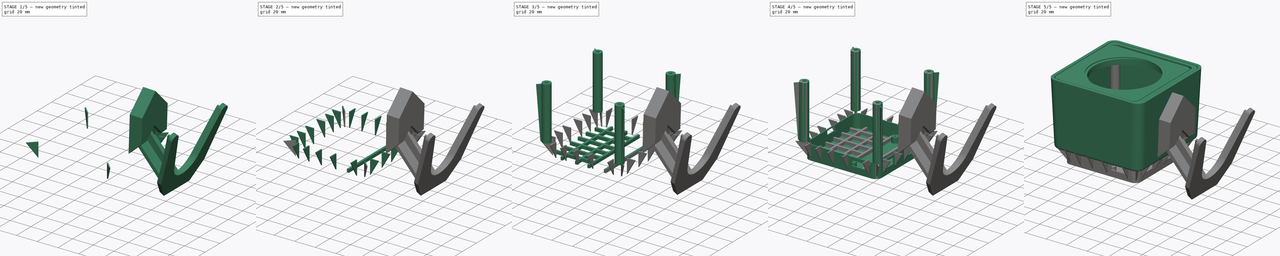
[diagram: build sequence overview — one tinted view per stage of 5, left to right]
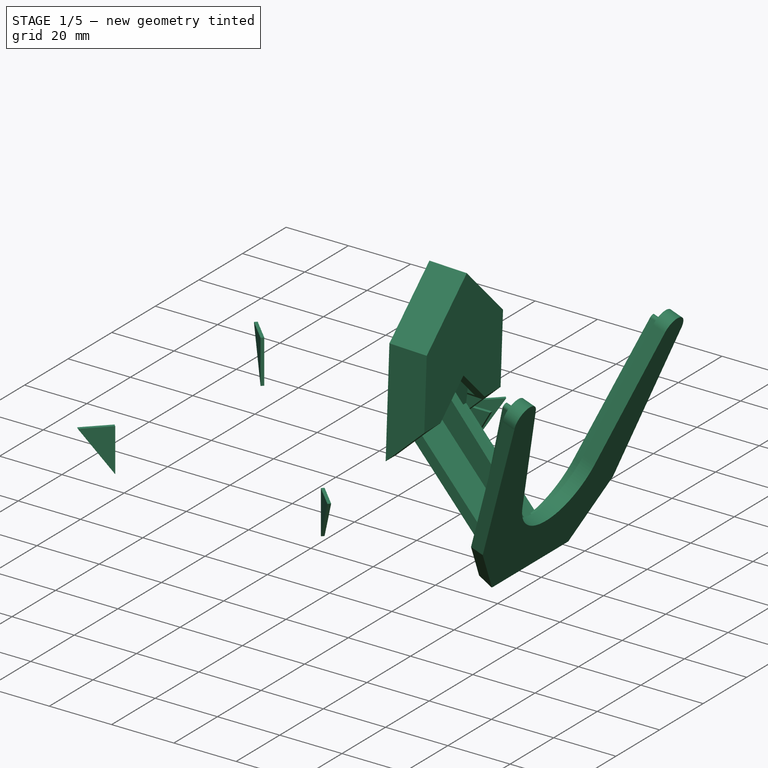
[diagram: stage 1 of 5 — iso view after this stage's code; geometry added in this stage tinted green]
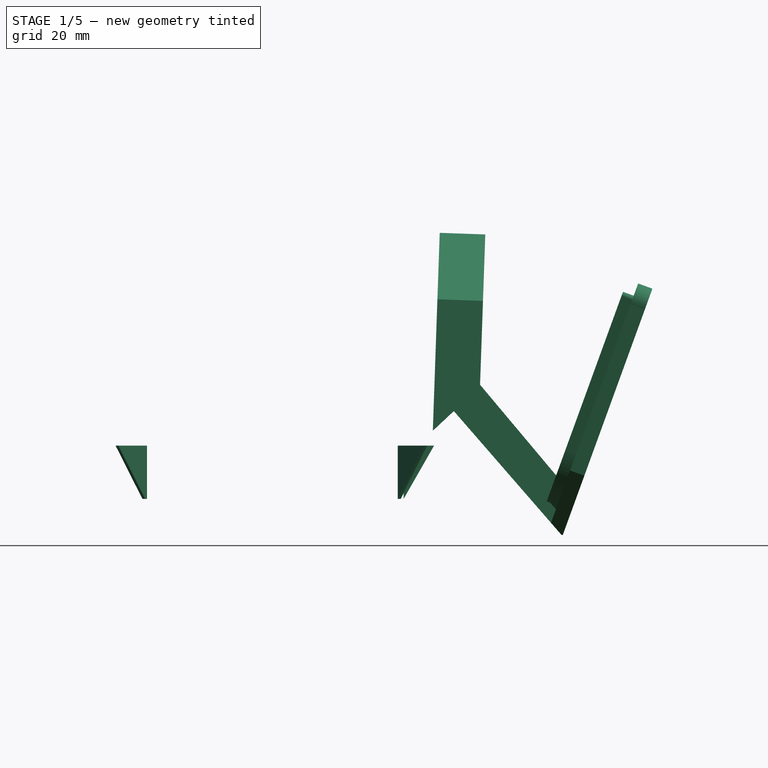
[diagram: stage 1 of 5 — front view after this stage's code; geometry added in this stage tinted green]
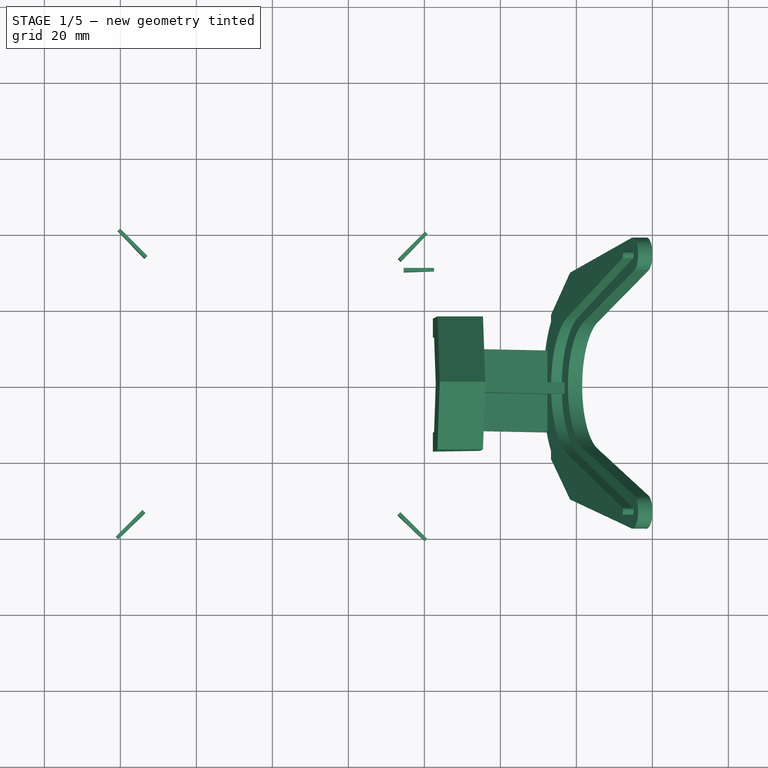
[diagram: stage 1 of 5 — top view after this stage's code; geometry added in this stage tinted green]
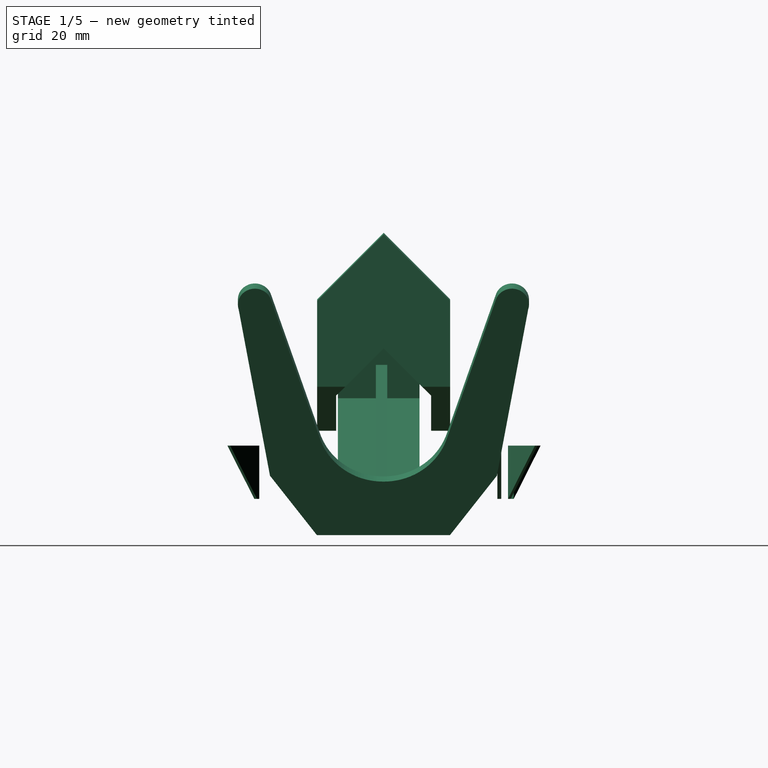
[diagram: stage 1 of 5 — right view after this stage's code; geometry added in this stage tinted green]
FCSTD DOCUMENT  (FreeCAD 0.16R)
Label: speaker
License: All rights reserved
LicenseURL: http://en.wikipedia.org/wiki/All_rights_reserved
objects: Sketcher::SketchObject×46, Part::Extrusion×39, Part::Cut×23, Part::Box×22, Part::MultiFuse×14, Part::Cylinder×11, Part::Thickness×2, PartDesign::Pad×2, Part::Loft×1
note: 162 computed .brp shape members not serialized (recipe doc carries the construction recipe); baked Part::Feature solids carry a one-line shape summary decoded from their .brp

FEATURE [Sketcher::SketchObject] Sketch
  sketch-geometry (8):
    g0: LineSegment StartX=24.6491 StartY=24.9809 StartZ=0 EndX=24.6491 EndY=-15.0191 EndZ=0
    g1: LineSegment StartX=-10.3509 StartY=-15.0191 StartZ=0 EndX=-10.3509 EndY=24.9809 EndZ=0
    g2: LineSegment StartX=-10.3509 StartY=24.9809 StartZ=0 EndX=7.1491 EndY=42.4809 EndZ=0
    g3: LineSegment StartX=24.6491 StartY=24.9809 StartZ=0 EndX=7.1491 EndY=42.4809 EndZ=0
    g4: LineSegment StartX=-10.3509 StartY=-15.0191 StartZ=0 EndX=-5.3509 EndY=-15.0191 EndZ=0
    g5: LineSegment StartX=24.6491 StartY=-15.0191 StartZ=0 EndX=19.6491 EndY=-15.0191 EndZ=0
    g6: LineSegment StartX=-5.3509 StartY=-15.0191 StartZ=0 EndX=7.1491 EndY=-2.51912 EndZ=0
    g7: LineSegment StartX=7.1491 StartY=-2.51912 StartZ=0 EndX=19.6491 EndY=-15.0191 EndZ=0
  constraints (22):
    c: Vertical(g0)
    c: Vertical(g1)
    c: Coincident(g2,g1)
    c: Coincident(g3,g0)
    c: Coincident(g3,g2)
    c: Angle(g2,g3) = 1.5708
    c: Angle(g1,g2) = 2.35619
    c: Equal(g2,g3)
    c: Coincident(g4,g1)
    c: Horizontal(g4)
    c: Coincident(g5,g0)
    c: Horizontal(g5)
    c: Coincident(g6,g4)
    c: Equal(g4,g5)
    c: Coincident(g7,g6)
    c: Coincident(g7,g5)
    c: Angle(g6,g7) = 1.5708
    c: DistanceY(g1,g1) = 40
    c: Equal(g0,g1)
    c: Angle(g6,g4) = 2.35619
    c: DistanceX(g4,g4) = 5
    c: DistanceX(g1,g0) = 35
FEATURE [Sketcher::SketchObject] Sketch011
  Placement = pos=(0,0,-14) rot=(0,0,1;0rad)
  sketch-geometry (10):
    g0: LineSegment StartX=25.7688 StartY=-12.4394 StartZ=0 EndX=25.7688 EndY=-17.4394 EndZ=0
    g1: LineSegment StartX=25.7688 StartY=-17.4394 StartZ=0 EndX=-9.23125 EndY=-17.4394 EndZ=0
    g2: LineSegment StartX=-26.7312 StartY=0.0605576 StartZ=0 EndX=-9.23125 EndY=17.5606 EndZ=0
    g3: LineSegment StartX=25.7688 StartY=12.5606 StartZ=0 EndX=15.7688 EndY=12.5606 EndZ=0
    g4: LineSegment StartX=3.26875 StartY=0.0605576 StartZ=0 EndX=15.7688 EndY=-12.4394 EndZ=0
    g5: LineSegment StartX=15.7688 StartY=-12.4394 StartZ=0 EndX=25.7688 EndY=-12.4394 EndZ=0
    g6: LineSegment StartX=3.26875 StartY=0.0605576 StartZ=0 EndX=15.7688 EndY=12.5606 EndZ=0
    g7: LineSegment StartX=25.7688 StartY=17.5606 StartZ=0 EndX=25.7688 EndY=12.5606 EndZ=0
    g8: LineSegment StartX=-9.23125 StartY=17.5606 StartZ=0 EndX=25.7688 EndY=17.5606 EndZ=0
    g9: LineSegment StartX=-26.7312 StartY=0.0605576 StartZ=0 EndX=-9.23125 EndY=-17.4394 EndZ=0
  constraints (29):
    c: Vertical(g0)
    c: Coincident(g1,g0)
    c: Horizontal(g1)
    c: Horizontal(g3)
    c: Coincident(g5,g4)
    c: Coincident(g5,g0)
    c: Horizontal(g5)
    c: Coincident(g6,g4)
    c: Coincident(g6,g3)
    c: Angle(g4,g6) = 1.5708
    c: Equal(g6,g4)
    c: Equal(g5,g3)
    c: Coincident(g7,g3)
    c: Vertical(g7)
    c: Equal(g0,g7)
    c: DistanceY(g0,g0) = 5
    c: Coincident(g8,g2)
    c: Coincident(g8,g7)
    c: Horizontal(g8)
    c: DistanceY(g1,g2) = 35
    c: Coincident(g9,g2)
    c: Coincident(g9,g1)
    c: Angle(g9,g2) = 1.5708
    c: DistanceX(g1,g1) = 35
    c: Equal(g5,g3)
    c: Angle(g5,g4) = 2.35619
    c: Angle(g1,g9) = 2.35619
    c: Equal(g1,g8)
    c: DistanceX(g3,g3) = 10
FEATURE [Part::Extrusion] Extrude004
  Base = -> Sketch011
  Dir = (0,0,12)
  Placement = pos=(57,-1,44) rot=(0,1,0;1.5708rad)
  Solid = true
FEATURE [Part::Box] Box013  label="Würfel013"
  Height = 16
  Length = 29
  Placement = pos=(48,-19,1) rot=(0,-1,0;0.785398rad)
  Width = 39
FEATURE [Part::Cut] Cut009
  Base = -> Extrude004
  Tool = -> Box013
FEATURE [Part::Box] Box014  label="Würfel014"
  Height = 34
  Length = 7
  Placement = pos=(44,-12.5,20) rot=(0,0,1;0rad)
  Width = 23
FEATURE [Part::Cut] Cut010
  Base = -> Cut009
  Placement = pos=(0,-3,0) rot=(0,0,1;0rad)
  Tool = -> Box014
FEATURE [Part::Box] Box015  label="Würfel015"
  Height = 16
  Length = 7
  Placement = pos=(44,-4,42.8) rot=(1,0,0;0.785398rad)
  Width = 16
FEATURE [Sketcher::SketchObject] Sketch014  label="cover002"
  Placement = pos=(-1,-2,106) rot=(0,0,1;0rad)
  sketch-geometry (8):
    g0: LineSegment StartX=-30.664 StartY=37.8815 StartZ=0 EndX=37.936 EndY=37.8815 EndZ=0
    g1: LineSegment StartX=42.936 StartY=32.8815 StartZ=0 EndX=42.936 EndY=-35.7185 EndZ=0
    g2: LineSegment StartX=37.936 StartY=-40.7185 StartZ=0 EndX=-30.664 EndY=-40.7185 EndZ=0
    g3: LineSegment StartX=-35.664 StartY=-35.7185 StartZ=0 EndX=-35.664 EndY=32.8815 EndZ=0
    g4: ArcOfCircle CenterX=-30.664 CenterY=32.8815 CenterZ=0 NormalX=0 NormalY=0 NormalZ=1 Radius=5 StartAngle=1.5708 EndAngle=3.14159
    g5: ArcOfCircle CenterX=37.936 CenterY=32.8815 CenterZ=0 NormalX=0 NormalY=0 NormalZ=1 Radius=5 StartAngle=0 EndAngle=1.5708
    g6: ArcOfCircle CenterX=37.936 CenterY=-35.7185 CenterZ=0 NormalX=0 NormalY=0 NormalZ=1 Radius=5 StartAngle=4.71239 EndAngle=6.28319
    g7: ArcOfCircle CenterX=-30.664 CenterY=-35.7185 CenterZ=0 NormalX=0 NormalY=0 NormalZ=1 Radius=5 StartAngle=3.14159 EndAngle=4.71239
  constraints (18):
    c: Horizontal(g0)
    c: Horizontal(g2)
    c: Vertical(g1)
    c: Vertical(g3)
    c: Tangent(g0,g4) = 1.5708
    c: Tangent(g3,g4) = 1.5708
    c: Tangent(g0,g5) = 1.5708
    c: Tangent(g1,g5) = 1.5708
    c: Tangent(g1,g6) = 1.5708
    c: Tangent(g2,g6) = 1.5708
    c: Tangent(g2,g7) = 1.5708
    c: Tangent(g3,g7) = 1.5708
    c: Equal(g4,g5)
    c: Equal(g5,g6)
    c: Equal(g6,g7)
    c: DistanceY(g2,g0) = 78.6
    c: DistanceX(g3,g1) = 78.6
    c: Radius(g5) = 5
FEATURE [Sketcher::SketchObject] Sketch015  label="StandPlate"
  sketch-geometry (12):
    g0: LineSegment StartX=-28.0531 StartY=-10 StartZ=0 EndX=-28.0531 EndY=10 EndZ=0
    g1: LineSegment StartX=-11.405 StartY=29.8525 StartZ=0 EndX=35.1903 EndY=38.097 EndZ=0
    g2: LineSegment StartX=37.9113 StartY=29.6005 StartZ=0 EndX=-1.10913 EndY=16.6646 EndZ=0
    g3: LineSegment StartX=-13.0531 StartY=0.12179 StartZ=0 EndX=-13.0531 EndY=-0.12179 EndZ=0
    g4: LineSegment StartX=-1.10913 StartY=-16.6646 StartZ=0 EndX=37.9113 EndY=-29.6005 EndZ=0
    g5: LineSegment StartX=35.1903 StartY=-38.097 StartZ=0 EndX=-11.405 EndY=-29.8525 EndZ=0
    g6: ArcOfCircle CenterX=4.37506 CenterY=0.12179 CenterZ=0 NormalX=0 NormalY=0 NormalZ=1 Radius=17.4282 StartAngle=1.89091 EndAngle=3.14159
    g7: ArcOfCircle CenterX=4.37506 CenterY=-0.12179 CenterZ=0 NormalX=0 NormalY=0 NormalZ=1 Radius=17.4282 StartAngle=3.14159 EndAngle=4.39228
    g8: ArcOfCircle CenterX=-7.8923 CenterY=10 CenterZ=0 NormalX=0 NormalY=0 NormalZ=1 Radius=20.1608 StartAngle=1.74592 EndAngle=3.14159
    g9: ArcOfCircle CenterX=-7.8923 CenterY=-10 CenterZ=0 NormalX=0 NormalY=0 NormalZ=1 Radius=20.1608 StartAngle=3.14159 EndAngle=4.53726
    g10: ArcOfCircle CenterX=36.5075 CenterY=33.8349 CenterZ=0 NormalX=0 NormalY=0 NormalZ=1 Radius=4.46103 StartAngle=5.0325 EndAngle=8.1537
    g11: ArcOfCircle CenterX=36.5075 CenterY=-33.8349 CenterZ=0 NormalX=0 NormalY=0 NormalZ=1 Radius=4.46103 StartAngle=4.41267 EndAngle=7.53387
  constraints (24):
    c: Vertical(g3)
    c: Equal(g2,g4)
    c: Equal(g5,g1)
    c: Tangent(g2,g6) = -1.5708
    c: Tangent(g3,g6) = -1.5708
    c: Tangent(g4,g7) = -1.5708
    c: Tangent(g3,g7) = -1.5708
    c: Tangent(g1,g8) = 1.5708
    c: Tangent(g0,g8) = 1.5708
    c: Tangent(g0,g9) = 1.5708
    c: Tangent(g5,g9) = 1.5708
    c: Tangent(g2,g10) = 1.5708
    c: Symmetric(g0,g0,g-1)
    c: Symmetric(g3,g3,g-1)
    c: Symmetric(g9,g8,g-1)
    c: Symmetric(g4,g2,g-1)
    c: Symmetric(g4,g2,g-1)
    c: Coincident(g1,g10)
    c: Coincident(g11,g5)
    c: Coincident(g4,g11)
    c: Symmetric(g5,g1,g-1)
    c: Symmetric(g11,g10,g-1)
    c: DistanceY(g0,g0) = 20
    c: DistanceX(g0,g3) = 15
FEATURE [Sketcher::SketchObject] Sketch016
  sketch-geometry (5):
    g0: LineSegment StartX=23.9178 StartY=0 StartZ=0 EndX=13.1678 EndY=10.75 EndZ=0
    g1: LineSegment StartX=23.9178 StartY=0 StartZ=0 EndX=13.1678 EndY=-10.75 EndZ=0
    g2: LineSegment StartX=13.1678 StartY=-10.75 StartZ=0 EndX=-16.8322 EndY=-10.75 EndZ=0
    g3: LineSegment StartX=-16.8322 StartY=-10.75 StartZ=0 EndX=-16.8322 EndY=10.75 EndZ=0
    g4: LineSegment StartX=-16.8322 StartY=10.75 StartZ=0 EndX=13.1678 EndY=10.75 EndZ=0
  constraints (14):
    c: Coincident(g1,g0)
    c: Coincident(g2,g1)
    c: Horizontal(g2)
    c: Coincident(g4,g0)
    c: Horizontal(g4)
    c: Vertical(g3)
    c: Coincident(g4,g3)
    c: Coincident(g2,g3)
    c: Angle(g0,g1) = 1.5708
    c: Equal(g2,g4)
    c: DistanceX(g4,g4) = 30
    c: DistanceY(g3,g3) = 21.5
    c: Equal(g0,g1)
    c: DistanceY(g-1,g0) = 10.75
FEATURE [Part::Extrusion] Extrude044
  Base = -> Sketch016
  Dir = (0,0,6)
  Placement = pos=(10,-1.25,41) rot=(0,-1,0;0.226893rad)
  Solid = true
FEATURE [Part::Box] Box020  label="Würfel020"
  Height = 52
  Length = 5
  Placement = pos=(-28,-11,4) rot=(0,1,0;0.506145rad)
  Width = 21.5
FEATURE [Part::Box] Box021  label="Würfel021"
  Height = 49
  Length = 10
  Placement = pos=(-26,-1,6) rot=(0,1,0;0.523599rad)
  Width = 3
FEATURE [Sketcher::SketchObject] Sketch020
  sketch-geometry (12):
    g0: LineSegment StartX=-28.0531 StartY=-17.5 StartZ=0 EndX=-28.0531 EndY=17.5 EndZ=0
    g1: LineSegment StartX=-11.405 StartY=29.8525 StartZ=0 EndX=35.1903 EndY=38.097 EndZ=0
    g2: LineSegment StartX=37.9113 StartY=29.6005 StartZ=0 EndX=-1.10914 EndY=16.6646 EndZ=0
    g3: LineSegment StartX=-13.0531 StartY=0.121796 StartZ=0 EndX=-13.0531 EndY=-0.121796 EndZ=0
    g4: LineSegment StartX=-1.10914 StartY=-16.6646 StartZ=0 EndX=37.9113 EndY=-29.6005 EndZ=0
    g5: LineSegment StartX=35.1903 StartY=-38.097 StartZ=0 EndX=-11.405 EndY=-29.8525 EndZ=0
    g6: ArcOfCircle CenterX=4.37505 CenterY=0.121796 CenterZ=0 NormalX=0 NormalY=0 NormalZ=1 Radius=17.4282 StartAngle=1.89091 EndAngle=3.14159
    g7: ArcOfCircle CenterX=4.37505 CenterY=-0.121796 CenterZ=0 NormalX=0 NormalY=0 NormalZ=1 Radius=17.4282 StartAngle=3.14159 EndAngle=4.39228
    g8: ArcOfCircle CenterX=36.5075 CenterY=33.8349 CenterZ=0 NormalX=0 NormalY=0 NormalZ=1 Radius=4.46103 StartAngle=5.0325 EndAngle=8.1537
    g9: ArcOfCircle CenterX=36.5075 CenterY=-33.8349 CenterZ=0 NormalX=0 NormalY=0 NormalZ=1 Radius=4.46103 StartAngle=4.41267 EndAngle=7.53387
    g10: LineSegment StartX=-28.0531 StartY=17.5 StartZ=0 EndX=-11.405 EndY=29.8525 EndZ=0
    g11: LineSegment StartX=-28.0531 StartY=-17.5 StartZ=0 EndX=-11.405 EndY=-29.8525 EndZ=0
  constraints (23):
    c: Vertical(g3)
    c: Equal(g2,g4)
    c: Equal(g5,g1)
    c: Tangent(g2,g6) = -1.5708
    c: Tangent(g3,g6) = -1.5708
    c: Tangent(g4,g7) = -1.5708
    c: Tangent(g3,g7) = -1.5708
    c: Tangent(g2,g8) = 1.5708
    c: Symmetric(g0,g0,g-1)
    c: Symmetric(g3,g3,g-1)
    c: Symmetric(g4,g2,g-1)
    c: Symmetric(g4,g2,g-1)
    c: Coincident(g1,g8)
    c: Coincident(g9,g5)
    c: Coincident(g4,g9)
    c: Symmetric(g5,g1,g-1)
    c: Symmetric(g9,g8,g-1)
    c: DistanceY(g0,g0) = 35
    c: DistanceX(g0,g3) = 15
    c: Coincident(g10,g0)
    c: Coincident(g10,g1)
    c: Coincident(g11,g0)
    c: Coincident(g11,g5)
FEATURE [Sketcher::SketchObject] Sketch021
  Placement = pos=(0,0,3) rot=(0,0,1;0rad)
  sketch-geometry (12):
    g0: LineSegment StartX=-23.3586 StartY=-3.63874 StartZ=0 EndX=-23.3586 EndY=3.63874 EndZ=0
    g1: LineSegment StartX=-6.00468 StartY=24.0743 StartZ=0 EndX=36.3059 EndY=34.6797 EndZ=0
    g2: LineSegment StartX=36.8798 StartY=32.766 StartZ=0 EndX=-4.41249 EndY=18.2913 EndZ=0
    g3: LineSegment StartX=-17.7791 StartY=0.116478 StartZ=0 EndX=-17.7791 EndY=-0.174905 EndZ=0
    g4: LineSegment StartX=-4.41249 StartY=-18.2913 StartZ=0 EndX=36.8798 EndY=-32.766 EndZ=0
    g5: LineSegment StartX=36.3059 StartY=-34.6797 StartZ=0 EndX=-6.00468 EndY=-24.0743 EndZ=0
    g6: ArcOfCircle CenterX=1.26058 CenterY=0.116478 CenterZ=0 NormalX=0 NormalY=0 NormalZ=1 Radius=19.0397 StartAngle=1.87335 EndAngle=3.14159
    g7: ArcOfCircle CenterX=1.18126 CenterY=-0.174905 CenterZ=0 NormalX=0 NormalY=0 NormalZ=1 Radius=18.9604 StartAngle=3.14159 EndAngle=4.41291
    g8: ArcOfCircle CenterX=-0.890388 CenterY=2.14503 CenterZ=0 NormalX=0 NormalY=0 NormalZ=1 Radius=22.5178 StartAngle=1.79992 EndAngle=3.07521
    g9: ArcOfCircle CenterX=-0.890388 CenterY=-2.14503 CenterZ=0 NormalX=0 NormalY=0 NormalZ=1 Radius=22.5178 StartAngle=3.20798 EndAngle=4.48327
    g10: ArcOfCircle CenterX=36.549 CenterY=33.7097 CenterZ=0 NormalX=0 NormalY=0 NormalZ=1 Radius=1 StartAngle=5.04954 EndAngle=8.09958
    g11: ArcOfCircle CenterX=36.549 CenterY=-33.7097 CenterZ=0 NormalX=0 NormalY=0 NormalZ=1 Radius=1 StartAngle=4.46679 EndAngle=7.51683
  constraints (24):
    c: Vertical(g3)
    c: Tangent(g3,g6) = -1.5708
    c: Tangent(g3,g7) = -1.5708
    c: Symmetric(g0,g0,g-1)
    c: Symmetric(g9,g8,g-1)
    c: Coincident(g1,g10)
    c: Coincident(g11,g5)
    c: Coincident(g0,g8)
    c: Coincident(g9,g0)
    c: Coincident(g9,g5)
    c: Coincident(g1,g8)
    c: Coincident(g4,g7)
    c: Coincident(g10,g2)
    c: Coincident(g11,g4)
    c: Tangent(g10,g2)
    c: Tangent(g10,g1)
    c: Tangent(g11,g4)
    c: Tangent(g5,g11)
    c: Symmetric(g11,g10,g-1)
    c: Radius(g11) = 1
    c: Symmetric(g4,g6,g-1)
    c: Symmetric(g1,g5,g-1)
    c: Radius(g10) = 1
    c: Coincident(g2,g6)
FEATURE [PartDesign::Pad] Pad
  Length = 4
  Length2 = 100
  Sketch = -> Sketch020
  Type = 0
FEATURE [PartDesign::Pad] Pad001
  Length = 4
  Length2 = 100
  Placement = pos=(0,0,3) rot=(0,0,1;0rad)
  Sketch = -> Sketch021
  Type = 0
FEATURE [Part::Box] Box032  label="Würfel031"
  Height = 12
  Length = 47
  Placement = pos=(-20,-15,43) rot=(0,0,1;0rad)
  Width = 35
FEATURE [Part::MultiFuse] Fusion021
  Shapes = -> [Box020,Box021]
FEATURE [Part::Cut] Cut029
  Base = -> Fusion021
  Placement = pos=(0,-1,0) rot=(0,0,1;0rad)
  Tool = -> Box032
FEATURE [Part::Box] Box033  label="Würfel032"
  Height = 74
  Length = 5
  Placement = pos=(-34,-29,0) rot=(0,1,0;0.506145rad)
  Width = 49
FEATURE [Sketcher::SketchObject] Sketch046
  Placement = pos=(0,0,0) rot=(1,0,0;1.5708rad)
  sketch-geometry (3):
    g0: LineSegment StartX=35.5558 StartY=-0.000820631 StartZ=0 EndX=35.5558 EndY=13.9992 EndZ=0
    g1: LineSegment StartX=35.5558 StartY=13.9992 StartZ=0 EndX=43.5558 EndY=13.9992 EndZ=0
    g2: LineSegment StartX=43.5558 StartY=13.9992 StartZ=0 EndX=35.5558 EndY=-0.000820631 EndZ=0
  constraints (7):
    c: Vertical(g0)
    c: Coincident(g1,g0)
    c: Horizontal(g1)
    c: DistanceY(g0,g0) = 14
    c: Coincident(g2,g1)
    c: Coincident(g2,g0)
    c: DistanceX(g1,g1) = 8
FEATURE [Part::Extrusion] Extrude071  label="rib056"
  Base = -> Sketch046
  Dir = (0,1,0)
  Placement = pos=(-1,30,-0.8) rot=(0,0,1;0rad)
  Solid = true
FEATURE [Sketcher::SketchObject] Sketch047  label="RibCorner"
  Placement = pos=(0,0,0) rot=(1,0,0;1.5708rad)
  sketch-geometry (3):
    g0: LineSegment StartX=32.2227 StartY=-0.000820631 StartZ=0 EndX=32.2227 EndY=13.9992 EndZ=0
    g1: LineSegment StartX=32.2227 StartY=13.9992 StartZ=0 EndX=42.2227 EndY=13.9992 EndZ=0
    g2: LineSegment StartX=42.2227 StartY=13.9992 StartZ=0 EndX=32.2227 EndY=-0.000820631 EndZ=0
  constraints (7):
    c: Vertical(g0)
    c: Coincident(g1,g0)
    c: Horizontal(g1)
    c: DistanceY(g0,g0) = 14
    c: Coincident(g2,g1)
    c: Coincident(g2,g0)
    c: DistanceX(g1,g1) = 10
FEATURE [Part::Extrusion] Extrude072
  Base = -> Sketch047
  Dir = (0,1,0)
  Placement = pos=(11,10,-0.8) rot=(0,0,1;0.785398rad)
  Solid = true
FEATURE [Sketcher::SketchObject] Sketch048  label="RibCorner001"
  Placement = pos=(0,0,0) rot=(1,0,0;1.5708rad)
  sketch-geometry (3):
    g0: LineSegment StartX=32.2227 StartY=-0.000820631 StartZ=0 EndX=32.2227 EndY=13.9992 EndZ=0
    g1: LineSegment StartX=32.2227 StartY=13.9992 StartZ=0 EndX=42.2227 EndY=13.9992 EndZ=0
    g2: LineSegment StartX=42.2227 StartY=13.9992 StartZ=0 EndX=32.2227 EndY=-0.000820631 EndZ=0
  constraints (7):
    c: Vertical(g0)
    c: Coincident(g1,g0)
    c: Horizontal(g1)
    c: DistanceY(g0,g0) = 14
    c: Coincident(g2,g1)
    c: Coincident(g2,g0)
    c: DistanceX(g1,g1) = 10
FEATURE [Part::Extrusion] Extrude073
  Base = -> Sketch048
  Dir = (0,1,0)
  Placement = pos=(-10.2,11.5,-0.8) rot=(0,0,1;2.35619rad)
  Solid = true
FEATURE [Sketcher::SketchObject] Sketch049  label="RibCorner002"
  Placement = pos=(0,0,0) rot=(1,0,0;1.5708rad)
  sketch-geometry (3):
    g0: LineSegment StartX=32.2227 StartY=-0.000820631 StartZ=0 EndX=32.2227 EndY=13.9992 EndZ=0
    g1: LineSegment StartX=32.2227 StartY=13.9992 StartZ=0 EndX=42.2227 EndY=13.9992 EndZ=0
    g2: LineSegment StartX=42.2227 StartY=13.9992 StartZ=0 EndX=32.2227 EndY=-0.000820631 EndZ=0
  constraints (7):
    c: Vertical(g0)
    c: Coincident(g1,g0)
    c: Horizontal(g1)
    c: DistanceY(g0,g0) = 14
    c: Coincident(g2,g1)
    c: Coincident(g2,g0)
    c: DistanceX(g1,g1) = 10
FEATURE [Part::Extrusion] Extrude074
  Base = -> Sketch049
  Dir = (0,1,0)
  Placement = pos=(10.2,-11.2,-0.8) rot=(0,0,-1;0.785398rad)
  Solid = true
FEATURE [Sketcher::SketchObject] Sketch050  label="RibCorner003"
  Placement = pos=(0,0,0) rot=(1,0,0;1.5708rad)
  sketch-geometry (3):
    g0: LineSegment StartX=32.2227 StartY=-0.000820631 StartZ=0 EndX=32.2227 EndY=13.9992 EndZ=0
    g1: LineSegment StartX=32.2227 StartY=13.9992 StartZ=0 EndX=42.2227 EndY=13.9992 EndZ=0
    g2: LineSegment StartX=42.2227 StartY=13.9992 StartZ=0 EndX=32.2227 EndY=-0.000820631 EndZ=0
  constraints (7):
    c: Vertical(g0)
    c: Coincident(g1,g0)
    c: Horizontal(g1)
    c: DistanceY(g0,g0) = 14
    c: Coincident(g2,g1)
    c: Coincident(g2,g0)
    c: DistanceX(g1,g1) = 10
FEATURE [Part::Extrusion] Extrude075
  Base = -> Sketch050
  Dir = (0,1,0)
  Placement = pos=(-11.4,-9.9,-0.8) rot=(0,0,1;3.92699rad)
  Solid = true
FEATURE [Part::Cut] Cut034
  Base = -> Cut010
  Placement = pos=(-1.4,4,0) rot=(0,1,0;0.034907rad)
  Tool = -> Box015
FEATURE [Part::MultiFuse] Fusion032
  Shapes = -> [Cut029,Pad001,Pad,Extrude044]
FEATURE [Part::Cut] Cut035  label="Stand"
  Base = -> Fusion032
  Placement = pos=(86,0,16) rot=(0,-1,0;1.22173rad)
  Tool = -> Box033
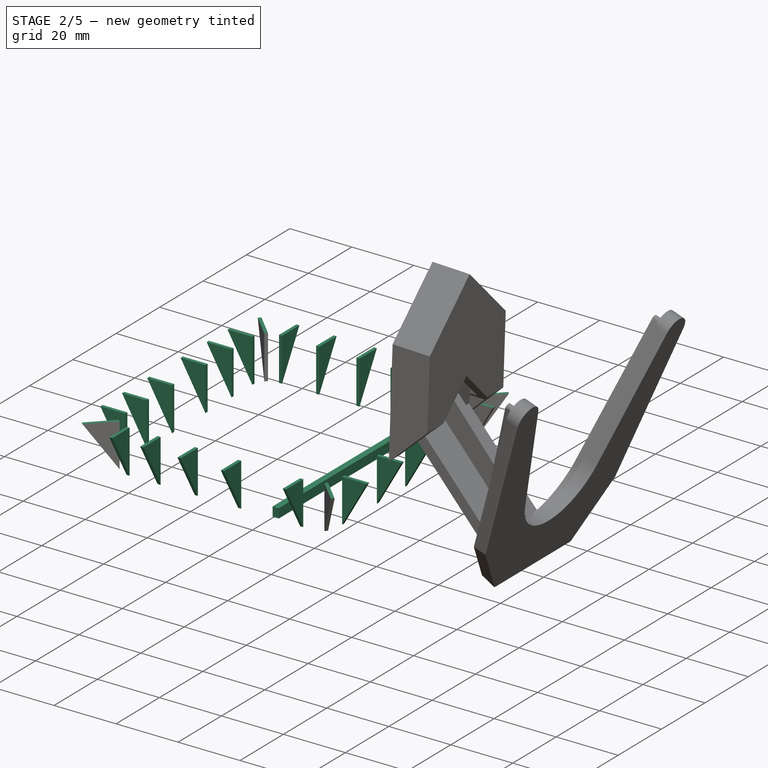
[diagram: stage 2 of 5 — iso view after this stage's code; geometry added in this stage tinted green]
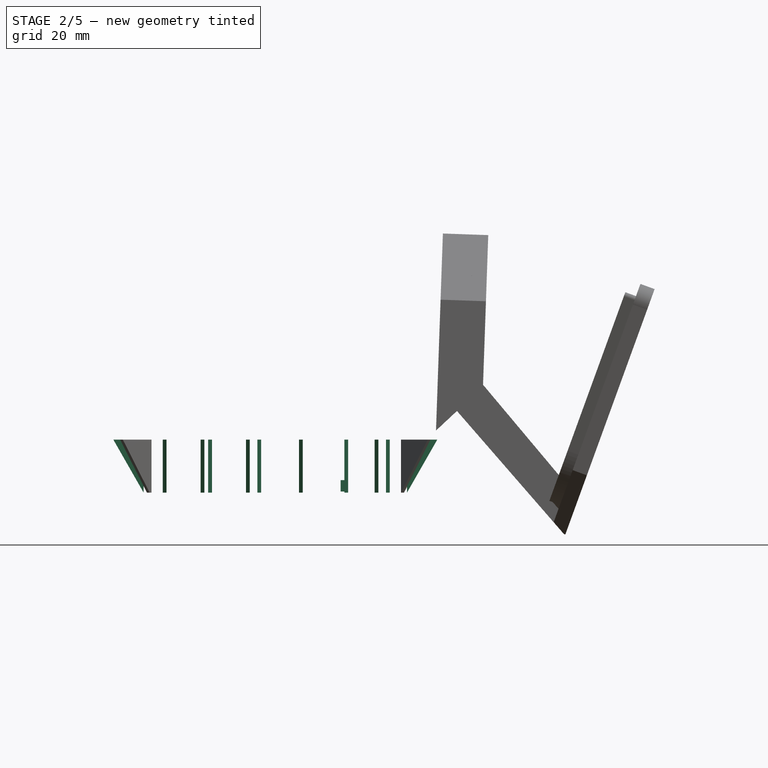
[diagram: stage 2 of 5 — front view after this stage's code; geometry added in this stage tinted green]
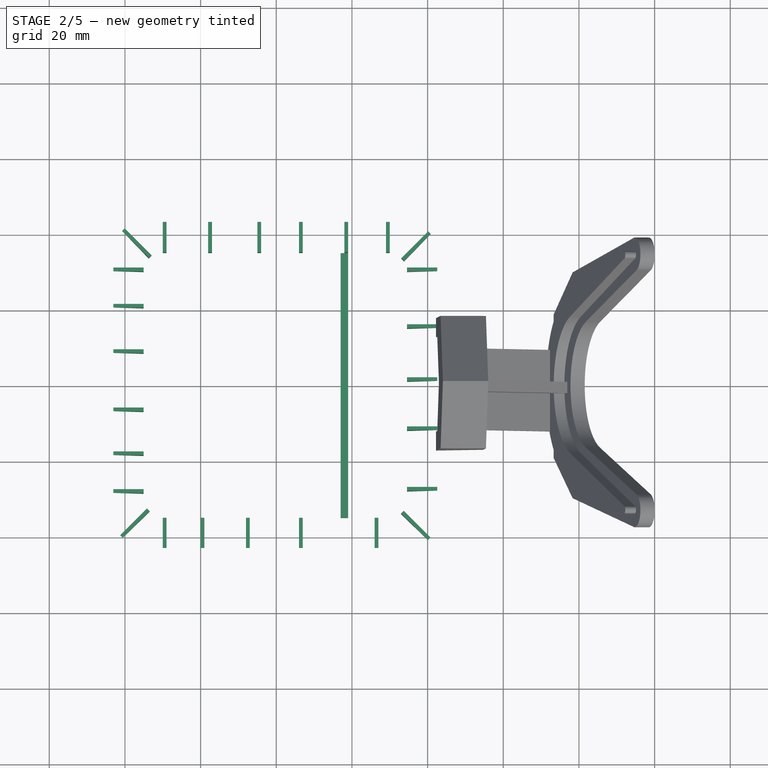
[diagram: stage 2 of 5 — top view after this stage's code; geometry added in this stage tinted green]
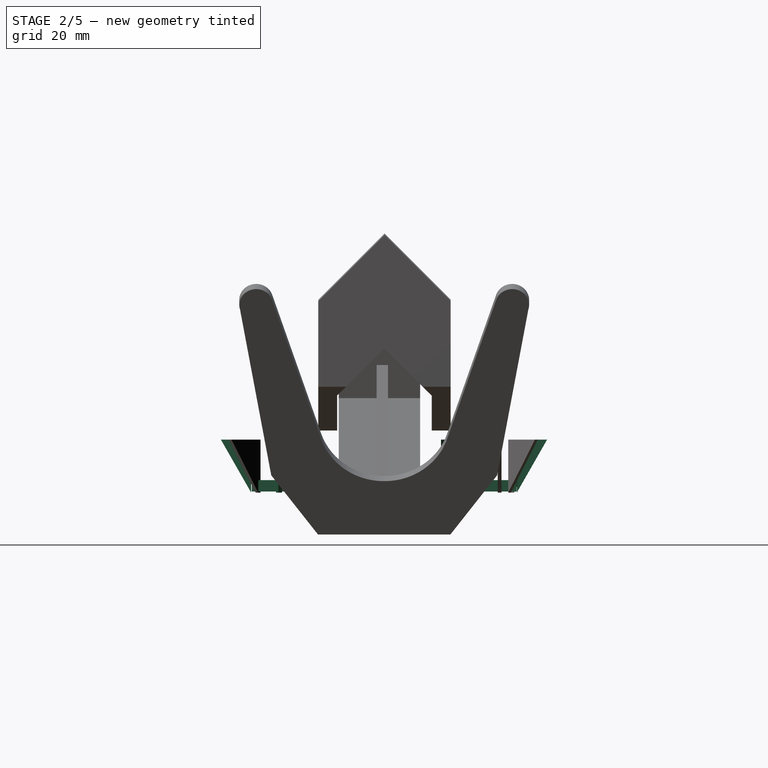
[diagram: stage 2 of 5 — right view after this stage's code; geometry added in this stage tinted green]
FEATURE [Sketcher::SketchObject] Sketch012
  Placement = pos=(0,0,0) rot=(1,0,0;1.5708rad)
  sketch-geometry (3):
    g0: LineSegment StartX=35.5558 StartY=-0.000820631 StartZ=0 EndX=35.5558 EndY=13.9992 EndZ=0
    g1: LineSegment StartX=35.5558 StartY=13.9992 StartZ=0 EndX=43.5558 EndY=13.9992 EndZ=0
    g2: LineSegment StartX=43.5558 StartY=13.9992 StartZ=0 EndX=35.5558 EndY=-0.000820631 EndZ=0
  constraints (7):
    c: Vertical(g0)
    c: Coincident(g1,g0)
    c: Horizontal(g1)
    c: DistanceY(g0,g0) = 14
    c: Coincident(g2,g1)
    c: Coincident(g2,g0)
    c: DistanceX(g1,g1) = 8
FEATURE [Part::Extrusion] Extrude037  label="rib032"
  Base = -> Sketch012
  Dir = (0,1,0)
  Placement = pos=(6,0.4,-0.8) rot=(0,0,-1;1.5708rad)
  Solid = true
FEATURE [Part::Box] Box031  label="Würfel030"
  Height = 3
  Length = 2
  Placement = pos=(17,-35,1) rot=(0,0,1;0rad)
  Width = 70
FEATURE [Sketcher::SketchObject] Sketch022
  Placement = pos=(0,0,0) rot=(1,0,0;1.5708rad)
  sketch-geometry (3):
    g0: LineSegment StartX=35.5558 StartY=-0.000820631 StartZ=0 EndX=35.5558 EndY=13.9992 EndZ=0
    g1: LineSegment StartX=35.5558 StartY=13.9992 StartZ=0 EndX=43.5558 EndY=13.9992 EndZ=0
    g2: LineSegment StartX=43.5558 StartY=13.9992 StartZ=0 EndX=35.5558 EndY=-0.000820631 EndZ=0
  constraints (7):
    c: Vertical(g0)
    c: Coincident(g1,g0)
    c: Horizontal(g1)
    c: DistanceY(g0,g0) = 14
    c: Coincident(g2,g1)
    c: Coincident(g2,g0)
    c: DistanceX(g1,g1) = 8
FEATURE [Part::Extrusion] Extrude048  label="rib033"
  Base = -> Sketch022
  Dir = (0,1,0)
  Placement = pos=(26,0.4,-0.8) rot=(0,0,-1;1.5708rad)
  Solid = true
FEATURE [Sketcher::SketchObject] Sketch023
  Placement = pos=(0,0,0) rot=(1,0,0;1.5708rad)
  sketch-geometry (3):
    g0: LineSegment StartX=35.5558 StartY=-0.000820631 StartZ=0 EndX=35.5558 EndY=13.9992 EndZ=0
    g1: LineSegment StartX=35.5558 StartY=13.9992 StartZ=0 EndX=43.5558 EndY=13.9992 EndZ=0
    g2: LineSegment StartX=43.5558 StartY=13.9992 StartZ=0 EndX=35.5558 EndY=-0.000820631 EndZ=0
  constraints (7):
    c: Vertical(g0)
    c: Coincident(g1,g0)
    c: Horizontal(g1)
    c: DistanceY(g0,g0) = 14
    c: Coincident(g2,g1)
    c: Coincident(g2,g0)
    c: DistanceX(g1,g1) = 8
FEATURE [Part::Extrusion] Extrude049  label="rib034"
  Base = -> Sketch023
  Dir = (0,1,0)
  Placement = pos=(-8,0.4,-0.8) rot=(0,0,-1;1.5708rad)
  Solid = true
FEATURE [Sketcher::SketchObject] Sketch024
  Placement = pos=(0,0,0) rot=(1,0,0;1.5708rad)
  sketch-geometry (3):
    g0: LineSegment StartX=35.5558 StartY=-0.000820631 StartZ=0 EndX=35.5558 EndY=13.9992 EndZ=0
    g1: LineSegment StartX=35.5558 StartY=13.9992 StartZ=0 EndX=43.5558 EndY=13.9992 EndZ=0
    g2: LineSegment StartX=43.5558 StartY=13.9992 StartZ=0 EndX=35.5558 EndY=-0.000820631 EndZ=0
  constraints (7):
    c: Vertical(g0)
    c: Coincident(g1,g0)
    c: Horizontal(g1)
    c: DistanceY(g0,g0) = 14
    c: Coincident(g2,g1)
    c: Coincident(g2,g0)
    c: DistanceX(g1,g1) = 8
FEATURE [Part::Extrusion] Extrude050  label="rib035"
  Base = -> Sketch024
  Dir = (0,1,0)
  Placement = pos=(-30,0.4,-0.8) rot=(0,0,-1;1.5708rad)
  Solid = true
FEATURE [Sketcher::SketchObject] Sketch025
  Placement = pos=(0,0,0) rot=(1,0,0;1.5708rad)
  sketch-geometry (3):
    g0: LineSegment StartX=35.5558 StartY=-0.000820631 StartZ=0 EndX=35.5558 EndY=13.9992 EndZ=0
    g1: LineSegment StartX=35.5558 StartY=13.9992 StartZ=0 EndX=43.5558 EndY=13.9992 EndZ=0
    g2: LineSegment StartX=43.5558 StartY=13.9992 StartZ=0 EndX=35.5558 EndY=-0.000820631 EndZ=0
  constraints (7):
    c: Vertical(g0)
    c: Coincident(g1,g0)
    c: Horizontal(g1)
    c: DistanceY(g0,g0) = 14
    c: Coincident(g2,g1)
    c: Coincident(g2,g0)
    c: DistanceX(g1,g1) = 8
FEATURE [Part::Extrusion] Extrude051  label="rib036"
  Base = -> Sketch025
  Dir = (0,1,0)
  Placement = pos=(-20,0.4,-0.8) rot=(0,0,-1;1.5708rad)
  Solid = true
FEATURE [Sketcher::SketchObject] Sketch026
  Placement = pos=(0,0,0) rot=(1,0,0;1.5708rad)
  sketch-geometry (3):
    g0: LineSegment StartX=35.5558 StartY=-0.000820631 StartZ=0 EndX=35.5558 EndY=13.9992 EndZ=0
    g1: LineSegment StartX=35.5558 StartY=13.9992 StartZ=0 EndX=43.5558 EndY=13.9992 EndZ=0
    g2: LineSegment StartX=43.5558 StartY=13.9992 StartZ=0 EndX=35.5558 EndY=-0.000820631 EndZ=0
  constraints (7):
    c: Vertical(g0)
    c: Coincident(g1,g0)
    c: Horizontal(g1)
    c: DistanceY(g0,g0) = 14
    c: Coincident(g2,g1)
    c: Coincident(g2,g0)
    c: DistanceX(g1,g1) = 8
FEATURE [Part::Extrusion] Extrude052  label="rib037"
  Base = -> Sketch026
  Dir = (0,1,0)
  Placement = pos=(0.5,-17.6,-0.8) rot=(0,0,1;3.14159rad)
  Solid = true
FEATURE [Sketcher::SketchObject] Sketch030
  Placement = pos=(0,0,0) rot=(1,0,0;1.5708rad)
  sketch-geometry (3):
    g0: LineSegment StartX=35.5558 StartY=-0.000820631 StartZ=0 EndX=35.5558 EndY=13.9992 EndZ=0
    g1: LineSegment StartX=35.5558 StartY=13.9992 StartZ=0 EndX=43.5558 EndY=13.9992 EndZ=0
    g2: LineSegment StartX=43.5558 StartY=13.9992 StartZ=0 EndX=35.5558 EndY=-0.000820631 EndZ=0
  constraints (7):
    c: Vertical(g0)
    c: Coincident(g1,g0)
    c: Horizontal(g1)
    c: DistanceY(g0,g0) = 14
    c: Coincident(g2,g1)
    c: Coincident(g2,g0)
    c: DistanceX(g1,g1) = 8
FEATURE [Part::Extrusion] Extrude056  label="rib041"
  Base = -> Sketch030
  Dir = (0,1,0)
  Placement = pos=(0.5,-6,-0.8) rot=(0,0,1;3.14159rad)
  Solid = true
FEATURE [Sketcher::SketchObject] Sketch031
  Placement = pos=(0,0,0) rot=(1,0,0;1.5708rad)
  sketch-geometry (3):
    g0: LineSegment StartX=35.5558 StartY=-0.000820631 StartZ=0 EndX=35.5558 EndY=13.9992 EndZ=0
    g1: LineSegment StartX=35.5558 StartY=13.9992 StartZ=0 EndX=43.5558 EndY=13.9992 EndZ=0
    g2: LineSegment StartX=43.5558 StartY=13.9992 StartZ=0 EndX=35.5558 EndY=-0.000820631 EndZ=0
  constraints (7):
    c: Vertical(g0)
    c: Coincident(g1,g0)
    c: Horizontal(g1)
    c: DistanceY(g0,g0) = 14
    c: Coincident(g2,g1)
    c: Coincident(g2,g0)
    c: DistanceX(g1,g1) = 8
FEATURE [Part::Extrusion] Extrude057  label="rib042"
  Base = -> Sketch031
  Dir = (0,1,0)
  Placement = pos=(0.5,9.4,-0.8) rot=(0,0,1;3.14159rad)
  Solid = true
FEATURE [Sketcher::SketchObject] Sketch032
  Placement = pos=(0,0,0) rot=(1,0,0;1.5708rad)
  sketch-geometry (3):
    g0: LineSegment StartX=35.5558 StartY=-0.000820631 StartZ=0 EndX=35.5558 EndY=13.9992 EndZ=0
    g1: LineSegment StartX=35.5558 StartY=13.9992 StartZ=0 EndX=43.5558 EndY=13.9992 EndZ=0
    g2: LineSegment StartX=43.5558 StartY=13.9992 StartZ=0 EndX=35.5558 EndY=-0.000820631 EndZ=0
  constraints (7):
    c: Vertical(g0)
    c: Coincident(g1,g0)
    c: Horizontal(g1)
    c: DistanceY(g0,g0) = 14
    c: Coincident(g2,g1)
    c: Coincident(g2,g0)
    c: DistanceX(g1,g1) = 8
FEATURE [Part::Extrusion] Extrude058  label="rib043"
  Base = -> Sketch032
  Dir = (0,1,0)
  Placement = pos=(0.5,31,-0.8) rot=(0,0,1;3.14159rad)
  Solid = true
FEATURE [Sketcher::SketchObject] Sketch033
  Placement = pos=(0,0,0) rot=(1,0,0;1.5708rad)
  sketch-geometry (3):
    g0: LineSegment StartX=35.5558 StartY=-0.000820631 StartZ=0 EndX=35.5558 EndY=13.9992 EndZ=0
    g1: LineSegment StartX=35.5558 StartY=13.9992 StartZ=0 EndX=43.5558 EndY=13.9992 EndZ=0
    g2: LineSegment StartX=43.5558 StartY=13.9992 StartZ=0 EndX=35.5558 EndY=-0.000820631 EndZ=0
  constraints (7):
    c: Vertical(g0)
    c: Coincident(g1,g0)
    c: Horizontal(g1)
    c: DistanceY(g0,g0) = 14
    c: Coincident(g2,g1)
    c: Coincident(g2,g0)
    c: DistanceX(g1,g1) = 8
FEATURE [Part::Extrusion] Extrude059  label="rib044"
  Base = -> Sketch033
  Dir = (0,1,0)
  Placement = pos=(0.5,-27.6,-0.8) rot=(0,0,1;3.14159rad)
  Solid = true
FEATURE [Sketcher::SketchObject] Sketch034
  Placement = pos=(0,0,0) rot=(1,0,0;1.5708rad)
  sketch-geometry (3):
    g0: LineSegment StartX=35.5558 StartY=-0.000820631 StartZ=0 EndX=35.5558 EndY=13.9992 EndZ=0
    g1: LineSegment StartX=35.5558 StartY=13.9992 StartZ=0 EndX=43.5558 EndY=13.9992 EndZ=0
    g2: LineSegment StartX=43.5558 StartY=13.9992 StartZ=0 EndX=35.5558 EndY=-0.000820631 EndZ=0
  constraints (7):
    c: Vertical(g0)
    c: Coincident(g1,g0)
    c: Horizontal(g1)
    c: DistanceY(g0,g0) = 14
    c: Coincident(g2,g1)
    c: Coincident(g2,g0)
    c: DistanceX(g1,g1) = 8
FEATURE [Part::Extrusion] Extrude060  label="rib045"
  Base = -> Sketch034
  Dir = (0,1,0)
  Placement = pos=(0.5,21.4,-0.8) rot=(0,0,1;3.14159rad)
  Solid = true
FEATURE [Sketcher::SketchObject] Sketch035
  Placement = pos=(0,0,0) rot=(1,0,0;1.5708rad)
  sketch-geometry (3):
    g0: LineSegment StartX=35.5558 StartY=-0.000820631 StartZ=0 EndX=35.5558 EndY=13.9992 EndZ=0
    g1: LineSegment StartX=35.5558 StartY=13.9992 StartZ=0 EndX=43.5558 EndY=13.9992 EndZ=0
    g2: LineSegment StartX=43.5558 StartY=13.9992 StartZ=0 EndX=35.5558 EndY=-0.000820631 EndZ=0
  constraints (7):
    c: Vertical(g0)
    c: Coincident(g1,g0)
    c: Horizontal(g1)
    c: DistanceY(g0,g0) = 14
    c: Coincident(g2,g1)
    c: Coincident(g2,g0)
    c: DistanceX(g1,g1) = 8
FEATURE [Part::Extrusion] Extrude061  label="rib046"
  Base = -> Sketch035
  Dir = (0,1,0)
  Placement = pos=(7,-0.5,-0.8) rot=(0,0,1;1.5708rad)
  Solid = true
FEATURE [Sketcher::SketchObject] Sketch036
  Placement = pos=(0,0,0) rot=(1,0,0;1.5708rad)
  sketch-geometry (3):
    g0: LineSegment StartX=35.5558 StartY=-0.000820631 StartZ=0 EndX=35.5558 EndY=13.9992 EndZ=0
    g1: LineSegment StartX=35.5558 StartY=13.9992 StartZ=0 EndX=43.5558 EndY=13.9992 EndZ=0
    g2: LineSegment StartX=43.5558 StartY=13.9992 StartZ=0 EndX=35.5558 EndY=-0.000820631 EndZ=0
  constraints (7):
    c: Vertical(g0)
    c: Coincident(g1,g0)
    c: Horizontal(g1)
    c: DistanceY(g0,g0) = 14
    c: Coincident(g2,g1)
    c: Coincident(g2,g0)
    c: DistanceX(g1,g1) = 8
FEATURE [Part::Extrusion] Extrude062  label="rib047"
  Base = -> Sketch036
  Dir = (0,1,0)
  Placement = pos=(30,-0.5,-0.8) rot=(0,0,1;1.5708rad)
  Solid = true
FEATURE [Sketcher::SketchObject] Sketch037
  Placement = pos=(0,0,0) rot=(1,0,0;1.5708rad)
  sketch-geometry (3):
    g0: LineSegment StartX=35.5558 StartY=-0.000820631 StartZ=0 EndX=35.5558 EndY=13.9992 EndZ=0
    g1: LineSegment StartX=35.5558 StartY=13.9992 StartZ=0 EndX=43.5558 EndY=13.9992 EndZ=0
    g2: LineSegment StartX=43.5558 StartY=13.9992 StartZ=0 EndX=35.5558 EndY=-0.000820631 EndZ=0
  constraints (7):
    c: Vertical(g0)
    c: Coincident(g1,g0)
    c: Horizontal(g1)
    c: DistanceY(g0,g0) = 14
    c: Coincident(g2,g1)
    c: Coincident(g2,g0)
    c: DistanceX(g1,g1) = 8
FEATURE [Part::Extrusion] Extrude063  label="rib048"
  Base = -> Sketch037
  Dir = (0,1,0)
  Placement = pos=(-29,-0.5,-0.8) rot=(0,0,1;1.5708rad)
  Solid = true
FEATURE [Sketcher::SketchObject] Sketch038
  Placement = pos=(0,0,0) rot=(1,0,0;1.5708rad)
  sketch-geometry (3):
    g0: LineSegment StartX=35.5558 StartY=-0.000820631 StartZ=0 EndX=35.5558 EndY=13.9992 EndZ=0
    g1: LineSegment StartX=35.5558 StartY=13.9992 StartZ=0 EndX=43.5558 EndY=13.9992 EndZ=0
    g2: LineSegment StartX=43.5558 StartY=13.9992 StartZ=0 EndX=35.5558 EndY=-0.000820631 EndZ=0
  constraints (7):
    c: Vertical(g0)
    c: Coincident(g1,g0)
    c: Horizontal(g1)
    c: DistanceY(g0,g0) = 14
    c: Coincident(g2,g1)
    c: Coincident(g2,g0)
    c: DistanceX(g1,g1) = 8
FEATURE [Part::Extrusion] Extrude064  label="rib049"
  Base = -> Sketch038
  Dir = (0,1,0)
  Placement = pos=(-17,-0.5,-0.8) rot=(0,0,1;1.5708rad)
  Solid = true
FEATURE [Sketcher::SketchObject] Sketch039
  Placement = pos=(0,0,0) rot=(1,0,0;1.5708rad)
  sketch-geometry (3):
    g0: LineSegment StartX=35.5558 StartY=-0.000820631 StartZ=0 EndX=35.5558 EndY=13.9992 EndZ=0
    g1: LineSegment StartX=35.5558 StartY=13.9992 StartZ=0 EndX=43.5558 EndY=13.9992 EndZ=0
    g2: LineSegment StartX=43.5558 StartY=13.9992 StartZ=0 EndX=35.5558 EndY=-0.000820631 EndZ=0
  constraints (7):
    c: Vertical(g0)
    c: Coincident(g1,g0)
    c: Horizontal(g1)
    c: DistanceY(g0,g0) = 14
    c: Coincident(g2,g1)
    c: Coincident(g2,g0)
    c: DistanceX(g1,g1) = 8
FEATURE [Part::Extrusion] Extrude065  label="rib050"
  Base = -> Sketch039
  Dir = (0,1,0)
  Placement = pos=(-4,-0.5,-0.8) rot=(0,0,1;1.5708rad)
  Solid = true
FEATURE [Sketcher::SketchObject] Sketch040
  Placement = pos=(0,0,0) rot=(1,0,0;1.5708rad)
  sketch-geometry (3):
    g0: LineSegment StartX=35.5558 StartY=-0.000820631 StartZ=0 EndX=35.5558 EndY=13.9992 EndZ=0
    g1: LineSegment StartX=35.5558 StartY=13.9992 StartZ=0 EndX=43.5558 EndY=13.9992 EndZ=0
    g2: LineSegment StartX=43.5558 StartY=13.9992 StartZ=0 EndX=35.5558 EndY=-0.000820631 EndZ=0
  constraints (7):
    c: Vertical(g0)
    c: Coincident(g1,g0)
    c: Horizontal(g1)
    c: DistanceY(g0,g0) = 14
    c: Coincident(g2,g1)
    c: Coincident(g2,g0)
    c: DistanceX(g1,g1) = 8
FEATURE [Part::Extrusion] Extrude066  label="rib051"
  Base = -> Sketch040
  Dir = (0,1,0)
  Placement = pos=(19,-0.5,-0.8) rot=(0,0,1;1.5708rad)
  Solid = true
FEATURE [Sketcher::SketchObject] Sketch041  label="RibStraight"
  Placement = pos=(0,0,0) rot=(1,0,0;1.5708rad)
  sketch-geometry (3):
    g0: LineSegment StartX=35.5558 StartY=-0.000820631 StartZ=0 EndX=35.5558 EndY=13.9992 EndZ=0
    g1: LineSegment StartX=35.5558 StartY=13.9992 StartZ=0 EndX=43.5558 EndY=13.9992 EndZ=0
    g2: LineSegment StartX=43.5558 StartY=13.9992 StartZ=0 EndX=35.5558 EndY=-0.000820631 EndZ=0
  constraints (7):
    c: Vertical(g0)
    c: Coincident(g1,g0)
    c: Horizontal(g1)
    c: DistanceY(g0,g0) = 14
    c: Coincident(g2,g1)
    c: Coincident(g2,g0)
    c: DistanceX(g1,g1) = 8
FEATURE [Sketcher::SketchObject] Sketch042
  Placement = pos=(0,0,0) rot=(1,0,0;1.5708rad)
  sketch-geometry (3):
    g0: LineSegment StartX=35.5558 StartY=-0.000820631 StartZ=0 EndX=35.5558 EndY=13.9992 EndZ=0
    g1: LineSegment StartX=35.5558 StartY=13.9992 StartZ=0 EndX=43.5558 EndY=13.9992 EndZ=0
    g2: LineSegment StartX=43.5558 StartY=13.9992 StartZ=0 EndX=35.5558 EndY=-0.000820631 EndZ=0
  constraints (7):
    c: Vertical(g0)
    c: Coincident(g1,g0)
    c: Horizontal(g1)
    c: DistanceY(g0,g0) = 14
    c: Coincident(g2,g1)
    c: Coincident(g2,g0)
    c: DistanceX(g1,g1) = 8
FEATURE [Part::Extrusion] Extrude067  label="rib052"
  Base = -> Sketch042
  Dir = (0,1,0)
  Placement = pos=(-1,15,-0.8) rot=(0,0,1;0rad)
  Solid = true
FEATURE [Sketcher::SketchObject] Sketch043
  Placement = pos=(0,0,0) rot=(1,0,0;1.5708rad)
  sketch-geometry (3):
    g0: LineSegment StartX=35.5558 StartY=-0.000820631 StartZ=0 EndX=35.5558 EndY=13.9992 EndZ=0
    g1: LineSegment StartX=35.5558 StartY=13.9992 StartZ=0 EndX=43.5558 EndY=13.9992 EndZ=0
    g2: LineSegment StartX=43.5558 StartY=13.9992 StartZ=0 EndX=35.5558 EndY=-0.000820631 EndZ=0
  constraints (7):
    c: Vertical(g0)
    c: Coincident(g1,g0)
    c: Horizontal(g1)
    c: DistanceY(g0,g0) = 14
    c: Coincident(g2,g1)
    c: Coincident(g2,g0)
    c: DistanceX(g1,g1) = 8
FEATURE [Part::Extrusion] Extrude068  label="rib053"
  Base = -> Sketch043
  Dir = (0,1,0)
  Placement = pos=(-1,1,-0.8) rot=(0,0,1;0rad)
  Solid = true
FEATURE [Sketcher::SketchObject] Sketch044
  Placement = pos=(0,0,0) rot=(1,0,0;1.5708rad)
  sketch-geometry (3):
    g0: LineSegment StartX=35.5558 StartY=-0.000820631 StartZ=0 EndX=35.5558 EndY=13.9992 EndZ=0
    g1: LineSegment StartX=35.5558 StartY=13.9992 StartZ=0 EndX=43.5558 EndY=13.9992 EndZ=0
    g2: LineSegment StartX=43.5558 StartY=13.9992 StartZ=0 EndX=35.5558 EndY=-0.000820631 EndZ=0
  constraints (7):
    c: Vertical(g0)
    c: Coincident(g1,g0)
    c: Horizontal(g1)
    c: DistanceY(g0,g0) = 14
    c: Coincident(g2,g1)
    c: Coincident(g2,g0)
    c: DistanceX(g1,g1) = 8
FEATURE [Part::Extrusion] Extrude069  label="rib054"
  Base = -> Sketch044
  Dir = (0,1,0)
  Placement = pos=(-1,-12,-0.8) rot=(0,0,1;0rad)
  Solid = true
FEATURE [Sketcher::SketchObject] Sketch045
  Placement = pos=(0,0,0) rot=(1,0,0;1.5708rad)
  sketch-geometry (3):
    g0: LineSegment StartX=35.5558 StartY=-0.000820631 StartZ=0 EndX=35.5558 EndY=13.9992 EndZ=0
    g1: LineSegment StartX=35.5558 StartY=13.9992 StartZ=0 EndX=43.5558 EndY=13.9992 EndZ=0
    g2: LineSegment StartX=43.5558 StartY=13.9992 StartZ=0 EndX=35.5558 EndY=-0.000820631 EndZ=0
  constraints (7):
    c: Vertical(g0)
    c: Coincident(g1,g0)
    c: Horizontal(g1)
    c: DistanceY(g0,g0) = 14
    c: Coincident(g2,g1)
    c: Coincident(g2,g0)
    c: DistanceX(g1,g1) = 8
FEATURE [Part::Extrusion] Extrude070  label="rib055"
  Base = -> Sketch045
  Dir = (0,1,0)
  Placement = pos=(-1,-28,-0.8) rot=(0,0,1;0rad)
  Solid = true
FEATURE [Part::MultiFuse] Fusion030
  Placement = pos=(0,0,1.5) rot=(0,0,1;0rad)
  Shapes = -> [Extrude064,Extrude037,Extrude049,Extrude051,Extrude056,Extrude057,Extrude058,Extrude059,Extrude060,Extrude062,Extrude065,Extrude066,Extrude067,Extrude068,Extrude069,Extrude070,Extrude071,Extrude073,Extrude063,Extrude075,Extrude050,Extrude061,Extrude052,Extrude048,Extrude072,Extrude074]
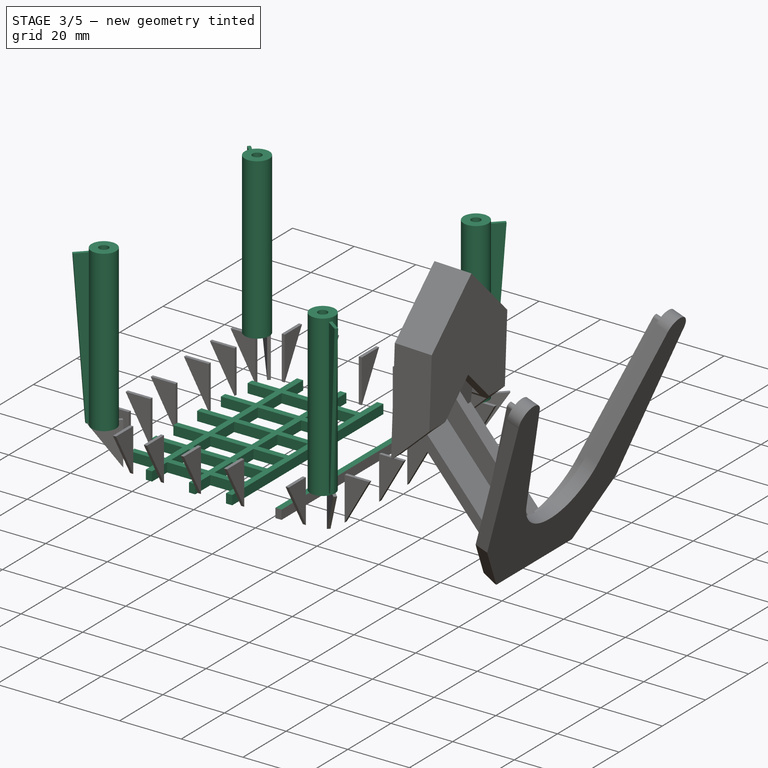
[diagram: stage 3 of 5 — iso view after this stage's code; geometry added in this stage tinted green]
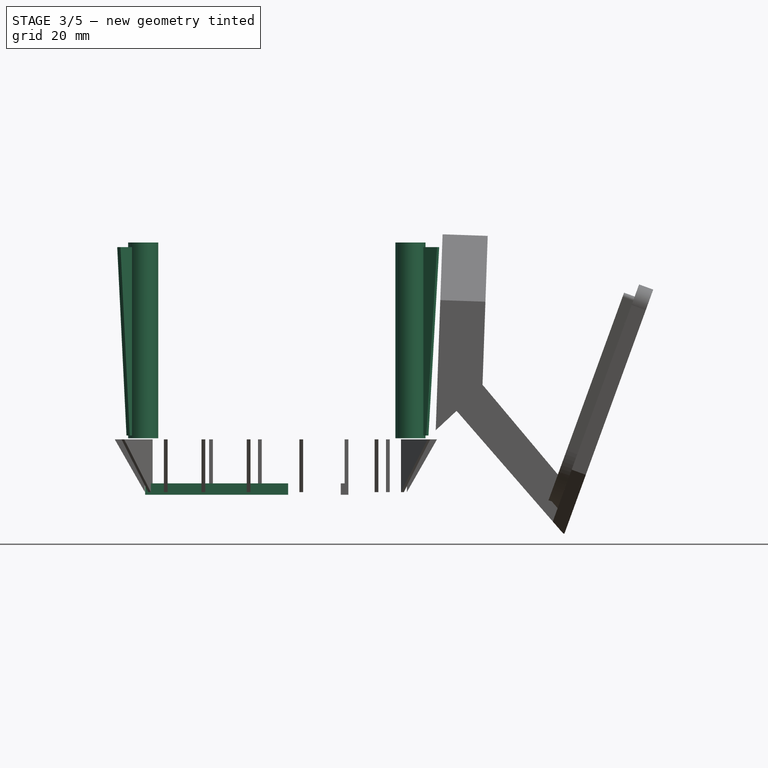
[diagram: stage 3 of 5 — front view after this stage's code; geometry added in this stage tinted green]
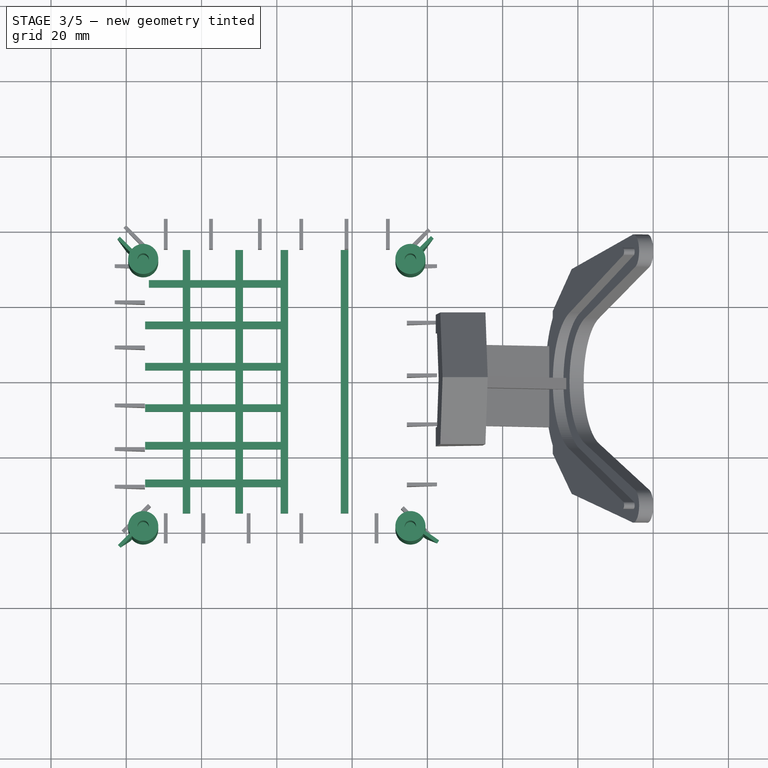
[diagram: stage 3 of 5 — top view after this stage's code; geometry added in this stage tinted green]
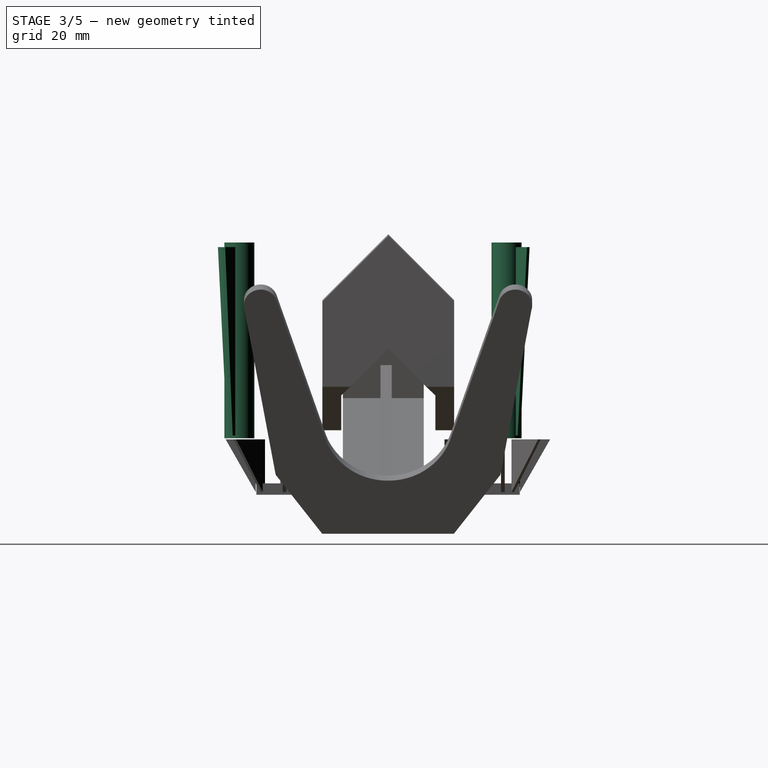
[diagram: stage 3 of 5 — right view after this stage's code; geometry added in this stage tinted green]
FEATURE [Part::Cylinder] Cylinder008  label="Zylinder008"
  Angle = 360
  Height = 52
  Placement = pos=(35,31,15) rot=(0,0,1;0rad)
  Radius = 4
FEATURE [Part::Cylinder] Cylinder009  label="Zylinder009"
  Angle = 360
  Height = 33
  Placement = pos=(35,31,43) rot=(0,0,1;0rad)
  Radius = 1.5
FEATURE [Part::Cut] Cut012
  Base = -> Cylinder008
  Placement = pos=(35.5,-35.5,0) rot=(0,0,1;0rad)
  Tool = -> Cylinder009
FEATURE [Part::Cut] Cut013
  Base = -> Cylinder008
  Placement = pos=(-35.5,35.5,0) rot=(0,0,1;0rad)
  Tool = -> Cylinder009
FEATURE [Part::Cut] Cut014
  Base = -> Cylinder008
  Placement = pos=(-35.5,-35.5,0) rot=(0,0,1;0rad)
  Tool = -> Cylinder009
FEATURE [Part::Cut] Cut015
  Base = -> Cylinder008
  Placement = pos=(35.5,35.5,0) rot=(0,0,1;0rad)
  Tool = -> Cylinder009
FEATURE [Sketcher::SketchObject] Sketch013
  Placement = pos=(0,66,0) rot=(1,0,0;1.5708rad)
  sketch-geometry (4):
    g0: LineSegment StartX=-37.5769 StartY=15.7171 StartZ=0 EndX=-40.4677 EndY=15.7171 EndZ=0
    g1: LineSegment StartX=-40.4677 StartY=15.7171 StartZ=0 EndX=-43.9478 EndY=65.7907 EndZ=0
    g2: LineSegment StartX=-43.9478 StartY=65.7907 StartZ=0 EndX=-37.4968 EndY=65.7907 EndZ=0
    g3: LineSegment StartX=-37.4968 StartY=65.7907 StartZ=0 EndX=-37.5769 EndY=15.7171 EndZ=0
  constraints (6):
    c: Horizontal(g0)
    c: Coincident(g1,g0)
    c: Coincident(g2,g1)
    c: Horizontal(g2)
    c: Coincident(g3,g2)
    c: Coincident(g3,g0)
FEATURE [Part::Extrusion] Extrude039
  Base = -> Sketch013
  Dir = (0,1,0)
  Placement = pos=(-58,-41,0) rot=(0,0,-1;0.785398rad)
  Solid = true
FEATURE [Part::Extrusion] Extrude040
  Base = -> Sketch013
  Dir = (0,1,0)
  Placement = pos=(36.2,-60.8,0) rot=(0,0,1;0.785398rad)
  Solid = true
FEATURE [Part::Extrusion] Extrude041
  Base = -> Sketch013
  Dir = (0,1,0)
  Placement = pos=(-36.8,53.2,0) rot=(0,0,1;3.92699rad)
  Solid = true
FEATURE [Part::Extrusion] Extrude042
  Base = -> Sketch013
  Dir = (0,1,0)
  Placement = pos=(45,36,0) rot=(0,0,1;2.53073rad)
  Solid = true
FEATURE [Part::Box] Box022  label="Würfel"
  Height = 3
  Length = 36
  Placement = pos=(-35,3,1) rot=(0,0,1;0rad)
  Width = 2
FEATURE [Part::Box] Box023  label="Würfel022"
  Height = 3
  Length = 36
  Placement = pos=(-35,14,1) rot=(0,0,1;0rad)
  Width = 2
FEATURE [Part::Box] Box024  label="Würfel023"
  Height = 3
  Length = 36
  Placement = pos=(-35,-8,1) rot=(0,0,1;0rad)
  Width = 2
FEATURE [Part::Box] Box025  label="Würfel024"
  Height = 3
  Length = 36
  Placement = pos=(-34,25,1) rot=(0,0,1;0rad)
  Width = 2
FEATURE [Part::Box] Box026  label="Würfel025"
  Height = 3
  Length = 36
  Placement = pos=(-35,-18,1) rot=(0,0,1;0rad)
  Width = 2
FEATURE [Part::Box] Box027  label="Würfel026"
  Height = 3
  Length = 36
  Placement = pos=(-35,-28,1) rot=(0,0,1;0rad)
  Width = 2
FEATURE [Part::Box] Box028  label="Würfel027"
  Height = 3
  Length = 2
  Placement = pos=(-25,-35,1) rot=(0,0,1;0rad)
  Width = 70
FEATURE [Part::Box] Box029  label="Würfel028"
  Height = 3
  Length = 2
  Placement = pos=(-11,-35,1) rot=(0,0,1;0rad)
  Width = 70
FEATURE [Part::Box] Box030  label="Würfel029"
  Height = 3
  Length = 2
  Placement = pos=(1,-35,1) rot=(0,0,1;0rad)
  Width = 70
FEATURE [Part::MultiFuse] Fusion019
  Placement = pos=(-35,-35,0) rot=(0,0,1;0rad)
  Shapes = -> [Cut015,Cut012,Cut013,Cut014]
FEATURE [Part::MultiFuse] Fusion027
  Shapes = -> [Extrude039,Extrude040,Extrude041,Extrude042]
FEATURE [Part::MultiFuse] Fusion029  label="BottomStrouts"
  Placement = pos=(0,0,-1) rot=(0,0,1;0rad)
  Shapes = -> [Box024,Box022,Box023,Box025,Box026,Box027,Box028,Box029,Box030,Box031]
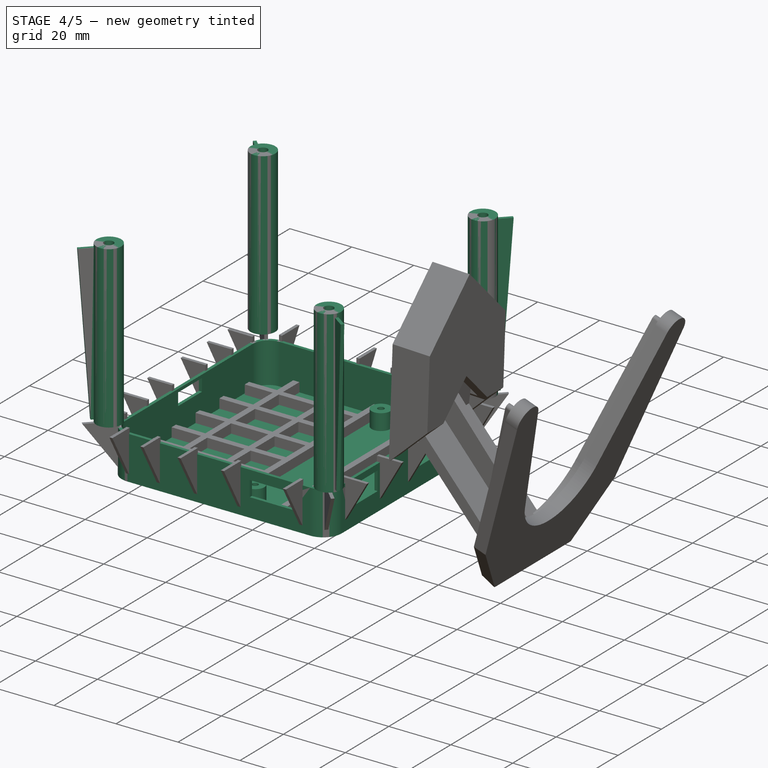
[diagram: stage 4 of 5 — iso view after this stage's code; geometry added in this stage tinted green]
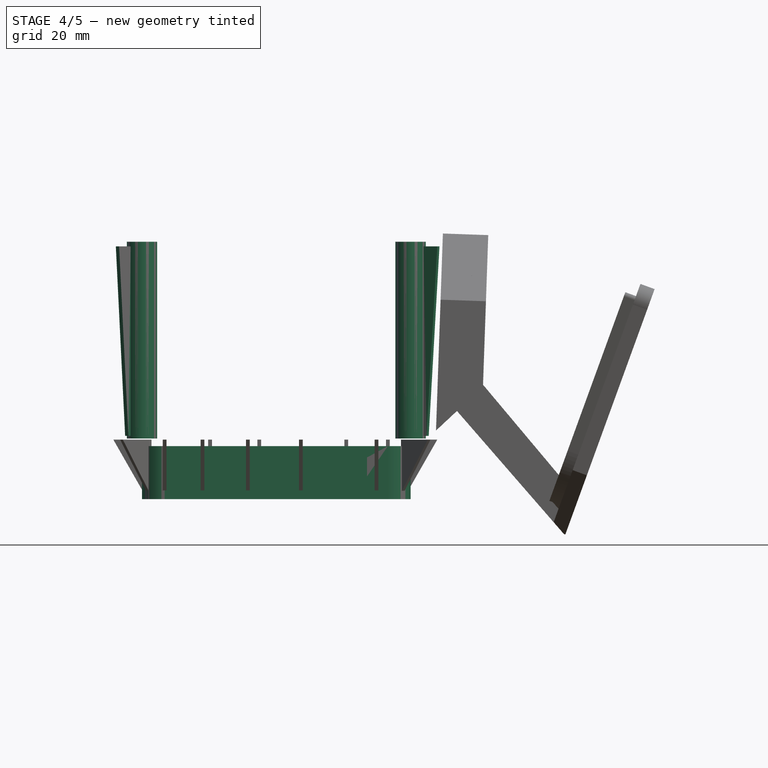
[diagram: stage 4 of 5 — front view after this stage's code; geometry added in this stage tinted green]
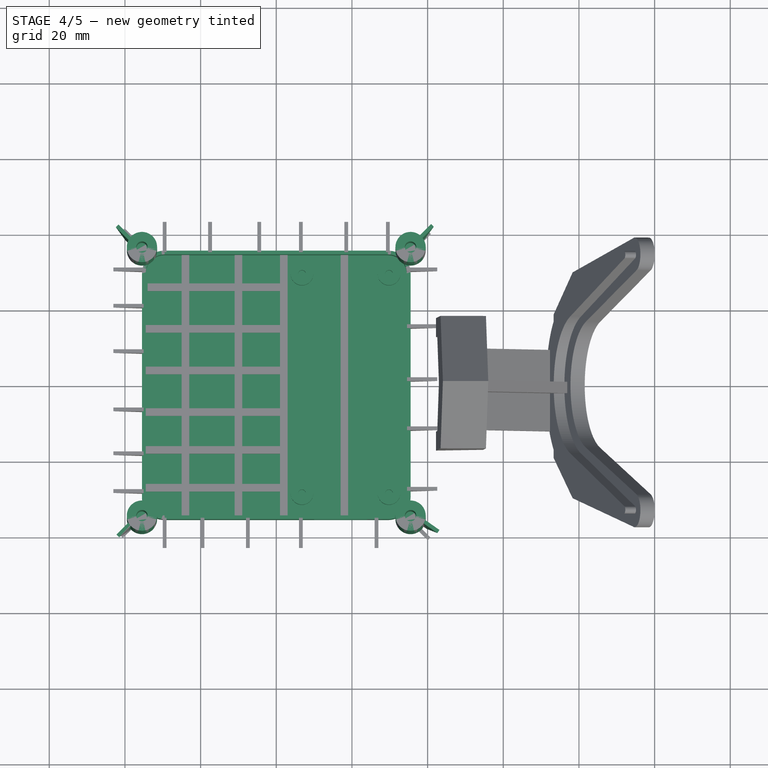
[diagram: stage 4 of 5 — top view after this stage's code; geometry added in this stage tinted green]
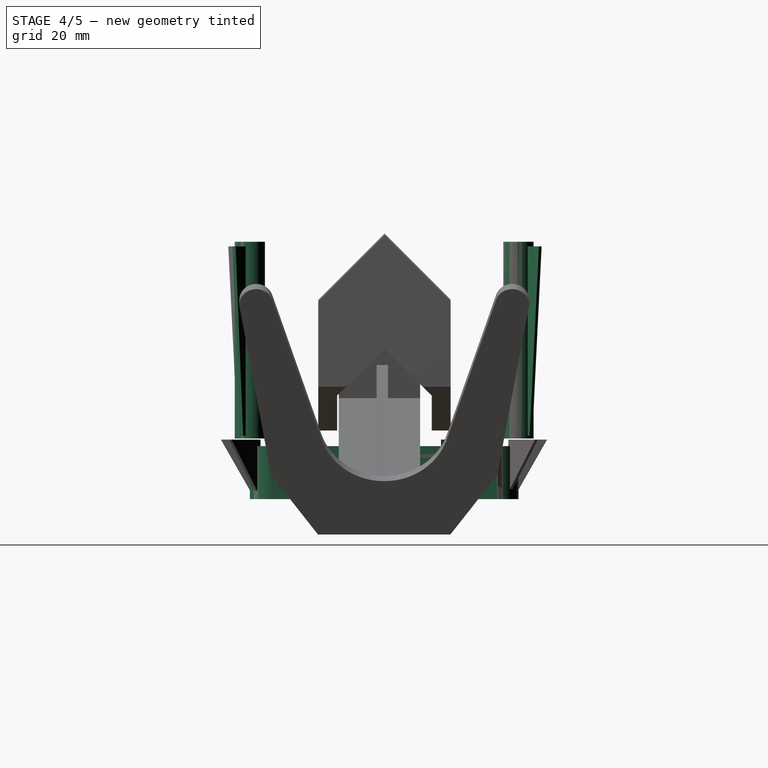
[diagram: stage 4 of 5 — right view after this stage's code; geometry added in this stage tinted green]
FEATURE [Part::Cylinder] Cylinder  label="Zylinder"
  Angle = 360
  Height = 6
  Radius = 3
FEATURE [Part::Cylinder] Cylinder001  label="Zylinder001"
  Angle = 360
  Height = 6
  Radius = 1
FEATURE [Part::Cut] Cut001
  Base = -> Cylinder
  Placement = pos=(23,27.5,-2) rot=(0,0,1;0rad)
  Tool = -> Cylinder001
FEATURE [Part::Cylinder] Cylinder002  label="Zylinder002"
  Angle = 360
  Height = 6
  Radius = 3
FEATURE [Part::Cylinder] Cylinder003  label="Zylinder003"
  Angle = 360
  Height = 6
  Radius = 1
FEATURE [Part::Cut] Cut002
  Base = -> Cylinder002
  Placement = pos=(0,27.5,-2) rot=(0,0,1;0rad)
  Tool = -> Cylinder003
FEATURE [Part::Cylinder] Cylinder004  label="Zylinder004"
  Angle = 360
  Height = 6
  Radius = 3
FEATURE [Part::Cylinder] Cylinder005  label="Zylinder005"
  Angle = 360
  Height = 6
  Radius = 1
FEATURE [Part::Cut] Cut003
  Base = -> Cylinder004
  Placement = pos=(23,-30.5,-2) rot=(0,0,1;0rad)
  Tool = -> Cylinder005
FEATURE [Part::Cylinder] Cylinder006  label="Zylinder006"
  Angle = 360
  Height = 6
  Radius = 3
FEATURE [Part::Cylinder] Cylinder007  label="Zylinder007"
  Angle = 360
  Height = 6
  Radius = 1
FEATURE [Part::Cut] Cut004
  Base = -> Cylinder006
  Placement = pos=(0,-30.5,-2) rot=(0,0,1;0rad)
  Tool = -> Cylinder007
FEATURE [Part::Box] Box  label="USB-Cutout"
  Height = 5
  Length = 8
  Placement = pos=(29,4,5) rot=(0,0,1;0rad)
  Width = 10
FEATURE [Part::Box] Box001  label="HDMI_Cutout"
  Height = 6
  Length = 8
  Placement = pos=(30,-27,5) rot=(0,0,1;0rad)
  Width = 14
FEATURE [Part::Box] Box002  label="Power_Cutout"
  Height = 5
  Length = 8
  Placement = pos=(29,17,5) rot=(0,0,1;0rad)
  Width = 10
FEATURE [Part::Box] Box003  label="SD_Cutout"
  Height = 5
  Length = 14
  Placement = pos=(10,-38,5) rot=(0,0,1;0rad)
  Width = 9
FEATURE [Part::Extrusion] Extrude003
  Base = -> Sketch002
  Dir = (0,0,13)
  Solid = true
FEATURE [Part::MultiFuse] Fusion002  label="PiZeroStands"
  Placement = pos=(6.8,2,1.2) rot=(0,0,1;0rad)
  Shapes = -> [Cut004,Cut003,Cut002,Cut001]
FEATURE [Part::Box] Box016  label="Mic_Cable_Cutout"
  Height = 4
  Length = 6
  Placement = pos=(-38,-5,8) rot=(0,0,1;0rad)
  Width = 11
FEATURE [Part::Thickness] Thickness001
  Faces = -> Extrude003 [Face10]
  Intersection = false
  Join = 2
  Mode = 0
  SelfIntersection = false
  Value = 1
FEATURE [Part::MultiFuse] Fusion
  Shapes = -> [Box016,Box,Box001,Box002,Box003]
FEATURE [Part::Cut] Cut033
  Base = -> Thickness001
  Tool = -> Fusion
FEATURE [Part::MultiFuse] Fusion028
  Placement = pos=(0,4,0) rot=(0,0,1;0rad)
  Shapes = -> [Fusion019,Fusion027]
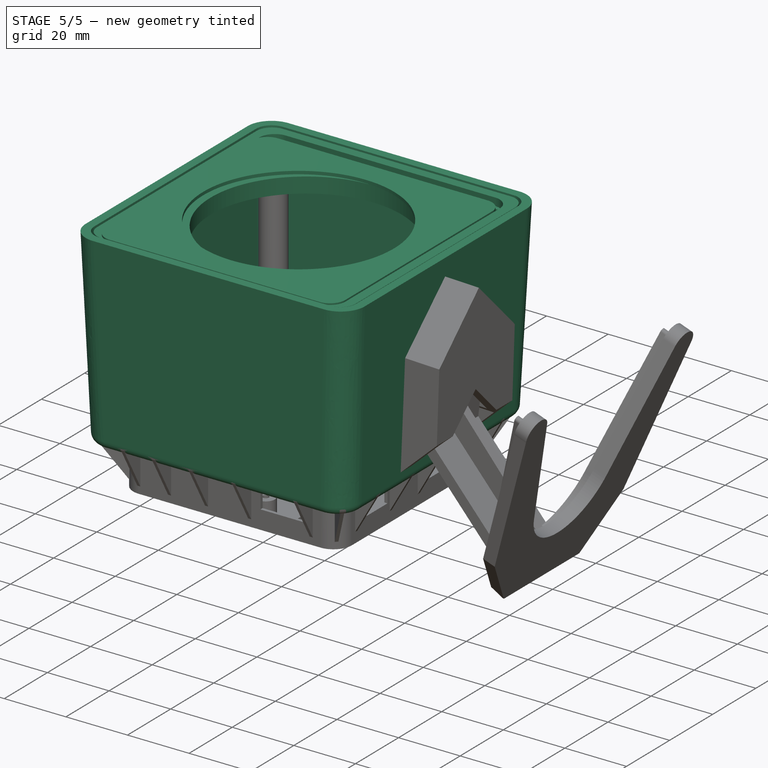
[diagram: stage 5 of 5 — iso view after this stage's code; geometry added in this stage tinted green]
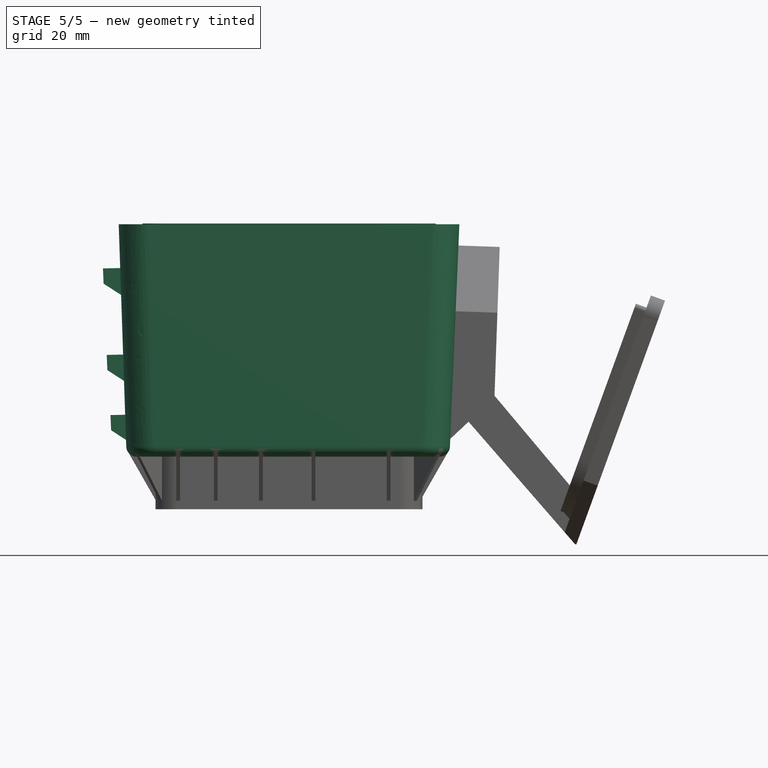
[diagram: stage 5 of 5 — front view after this stage's code; geometry added in this stage tinted green]
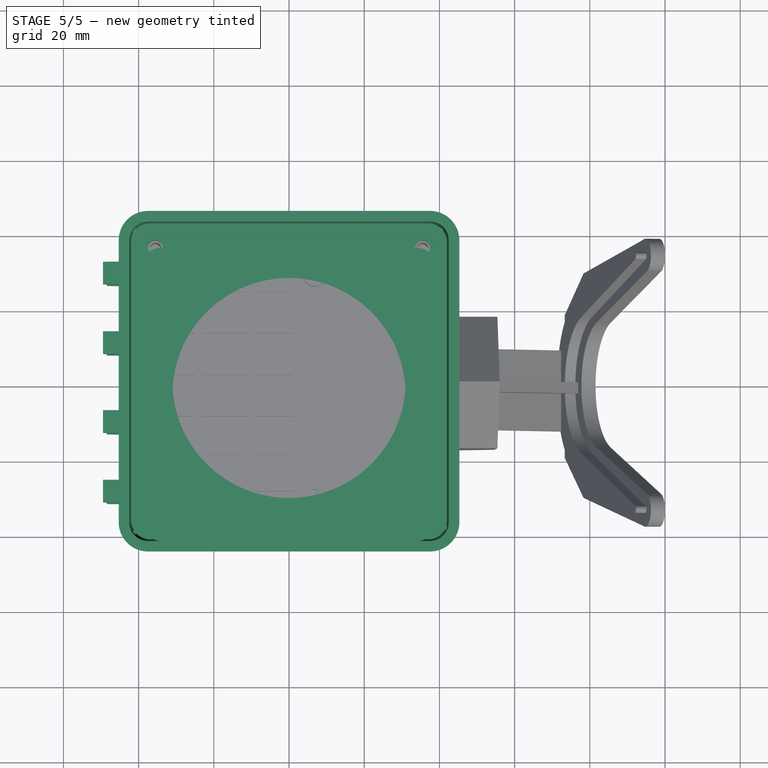
[diagram: stage 5 of 5 — top view after this stage's code; geometry added in this stage tinted green]
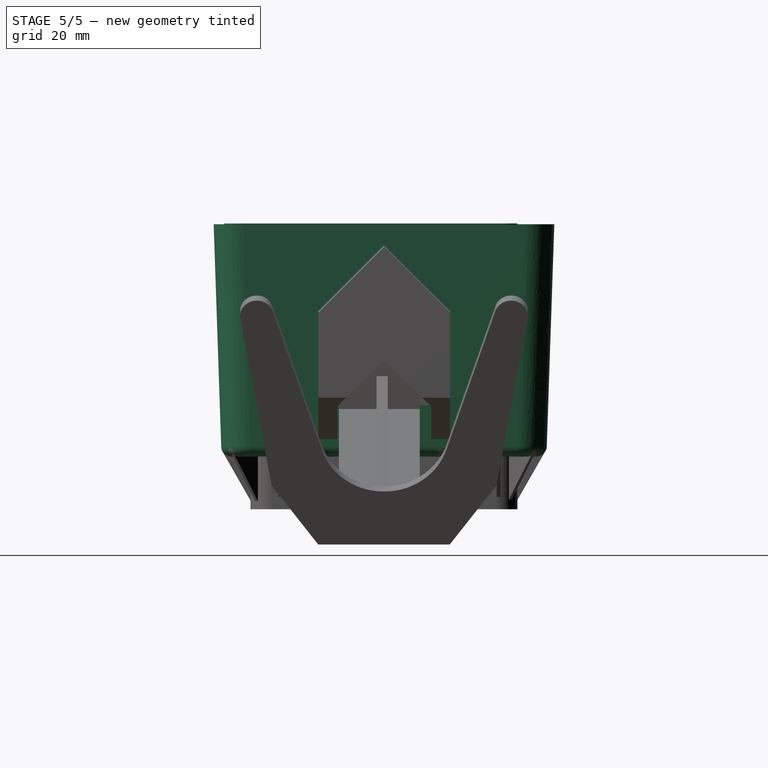
[diagram: stage 5 of 5 — right view after this stage's code; geometry added in this stage tinted green]
FEATURE [Sketcher::SketchObject] Sketch002  label="Bottom001"
  sketch-geometry (8):
    g0: LineSegment StartX=-29.5 StartY=34.5 StartZ=0 EndX=29.5 EndY=34.5 EndZ=0
    g1: LineSegment StartX=34.5 StartY=29.5 StartZ=0 EndX=34.5 EndY=-29.5 EndZ=0
    g2: LineSegment StartX=29.5 StartY=-34.5 StartZ=0 EndX=-29.5 EndY=-34.5 EndZ=0
    g3: LineSegment StartX=-34.5 StartY=-29.5 StartZ=0 EndX=-34.5 EndY=29.5 EndZ=0
    g4: ArcOfCircle CenterX=-29.5 CenterY=29.5 CenterZ=0 NormalX=0 NormalY=0 NormalZ=1 Radius=5 StartAngle=1.5708 EndAngle=3.14159
    g5: ArcOfCircle CenterX=29.5 CenterY=29.5 CenterZ=0 NormalX=0 NormalY=0 NormalZ=1 Radius=5 StartAngle=0 EndAngle=1.5708
    g6: ArcOfCircle CenterX=29.5 CenterY=-29.5 CenterZ=0 NormalX=0 NormalY=0 NormalZ=1 Radius=5 StartAngle=4.71239 EndAngle=6.28319
    g7: ArcOfCircle CenterX=-29.5 CenterY=-29.5 CenterZ=0 NormalX=0 NormalY=0 NormalZ=1 Radius=5 StartAngle=3.14159 EndAngle=4.71239
  constraints (20):
    c: Horizontal(g0)
    c: Horizontal(g2)
    c: Vertical(g1)
    c: Vertical(g3)
    c: Tangent(g0,g4) = 1.5708
    c: Tangent(g3,g4) = 1.5708
    c: Tangent(g0,g5) = 1.5708
    c: Tangent(g1,g5) = 1.5708
    c: Tangent(g1,g6) = 1.5708
    c: Tangent(g2,g6) = 1.5708
    c: Tangent(g2,g7) = 1.5708
    c: Tangent(g3,g7) = 1.5708
    c: Equal(g4,g5)
    c: Equal(g5,g6)
    c: Equal(g6,g7)
    c: DistanceY(g2,g0) = 69
    c: DistanceX(g3,g1) = 69
    c: Radius(g5) = 5
    c: DistanceX(g3,g-1) = 34.5
    c: DistanceY(g-1,g0) = 34.5
FEATURE [Sketcher::SketchObject] Sketch003  label="Front001"
  Placement = pos=(0,0,75) rot=(0,0,1;0rad)
  sketch-geometry (8):
    g0: LineSegment StartX=-37.5 StartY=42.5 StartZ=0 EndX=37.5 EndY=42.5 EndZ=0
    g1: LineSegment StartX=42.5 StartY=37.5 StartZ=0 EndX=42.5 EndY=-37.5 EndZ=0
    g2: LineSegment StartX=37.5 StartY=-42.5 StartZ=0 EndX=-37.5 EndY=-42.5 EndZ=0
    g3: LineSegment StartX=-42.5 StartY=-37.5 StartZ=0 EndX=-42.5 EndY=37.5 EndZ=0
    g4: ArcOfCircle CenterX=-37.5 CenterY=37.5 CenterZ=0 NormalX=0 NormalY=0 NormalZ=1 Radius=5 StartAngle=1.5708 EndAngle=3.14159
    g5: ArcOfCircle CenterX=37.5 CenterY=37.5 CenterZ=0 NormalX=0 NormalY=0 NormalZ=1 Radius=5 StartAngle=0 EndAngle=1.5708
    g6: ArcOfCircle CenterX=37.5 CenterY=-37.5 CenterZ=0 NormalX=0 NormalY=0 NormalZ=1 Radius=5 StartAngle=4.71239 EndAngle=6.28319
    g7: ArcOfCircle CenterX=-37.5 CenterY=-37.5 CenterZ=0 NormalX=0 NormalY=0 NormalZ=1 Radius=5 StartAngle=3.14159 EndAngle=4.71239
  constraints (20):
    c: Horizontal(g0)
    c: Horizontal(g2)
    c: Vertical(g1)
    c: Vertical(g3)
    c: Tangent(g0,g4) = 1.5708
    c: Tangent(g3,g4) = 1.5708
    c: Tangent(g0,g5) = 1.5708
    c: Tangent(g1,g5) = 1.5708
    c: Tangent(g1,g6) = 1.5708
    c: Tangent(g2,g6) = 1.5708
    c: Tangent(g2,g7) = 1.5708
    c: Tangent(g3,g7) = 1.5708
    c: Equal(g4,g5)
    c: Equal(g5,g6)
    c: Equal(g6,g7)
    c: DistanceY(g2,g0) = 85
    c: DistanceX(g3,g1) = 85
    c: Radius(g5) = 5
    c: DistanceX(g3,g-1) = 42.5
    c: DistanceY(g-1,g0) = 42.5
FEATURE [Sketcher::SketchObject] Sketch004  label="Middle"
  Placement = pos=(0,0,16) rot=(0,0,1;0rad)
  sketch-geometry (8):
    g0: LineSegment StartX=-35.5 StartY=40.5 StartZ=0 EndX=35.5 EndY=40.5 EndZ=0
    g1: LineSegment StartX=40.5 StartY=35.5 StartZ=0 EndX=40.5 EndY=-35 EndZ=0
    g2: LineSegment StartX=35.5 StartY=-40 StartZ=0 EndX=-35.5 EndY=-40 EndZ=0
    g3: LineSegment StartX=-40.5 StartY=-35 StartZ=0 EndX=-40.5 EndY=35.5 EndZ=0
    g4: ArcOfCircle CenterX=-35.5 CenterY=35.5 CenterZ=0 NormalX=0 NormalY=0 NormalZ=1 Radius=5 StartAngle=1.5708 EndAngle=3.14159
    g5: ArcOfCircle CenterX=35.5 CenterY=35.5 CenterZ=0 NormalX=0 NormalY=0 NormalZ=1 Radius=5 StartAngle=0 EndAngle=1.5708
    g6: ArcOfCircle CenterX=35.5 CenterY=-35 CenterZ=0 NormalX=0 NormalY=0 NormalZ=1 Radius=5 StartAngle=4.71239 EndAngle=6.28319
    g7: ArcOfCircle CenterX=-35.5 CenterY=-35 CenterZ=0 NormalX=0 NormalY=0 NormalZ=1 Radius=5 StartAngle=3.14159 EndAngle=4.71239
  constraints (20):
    c: Horizontal(g0)
    c: Horizontal(g2)
    c: Vertical(g1)
    c: Vertical(g3)
    c: Tangent(g0,g4) = 1.5708
    c: Tangent(g3,g4) = 1.5708
    c: Tangent(g0,g5) = 1.5708
    c: Tangent(g1,g5) = 1.5708
    c: Tangent(g1,g6) = 1.5708
    c: Tangent(g2,g6) = 1.5708
    c: Tangent(g2,g7) = 1.5708
    c: Tangent(g3,g7) = 1.5708
    c: Equal(g4,g5)
    c: Equal(g5,g6)
    c: Equal(g6,g7)
    c: DistanceY(g2,g0) = 80.5
    c: DistanceX(g3,g1) = 81
    c: Radius(g5) = 5
    c: DistanceX(g3,g-1) = 40.5
    c: DistanceY(g-1,g0) = 40.5
FEATURE [Sketcher::SketchObject] Sketch005  label="Bottom002"
  Placement = pos=(0,0,16) rot=(0,0,1;0rad)
  sketch-geometry (8):
    g0: LineSegment StartX=-28.8581 StartY=32.7851 StartZ=0 EndX=26.1419 EndY=32.7851 EndZ=0
    g1: LineSegment StartX=31.1419 StartY=27.7851 StartZ=0 EndX=31.1419 EndY=-27.2149 EndZ=0
    g2: LineSegment StartX=26.1419 StartY=-32.2149 StartZ=0 EndX=-28.8581 EndY=-32.2149 EndZ=0
    g3: LineSegment StartX=-33.8581 StartY=-27.2149 StartZ=0 EndX=-33.8581 EndY=27.7851 EndZ=0
    g4: ArcOfCircle CenterX=-28.8581 CenterY=27.7851 CenterZ=0 NormalX=0 NormalY=0 NormalZ=1 Radius=5 StartAngle=1.5708 EndAngle=3.14159
    g5: ArcOfCircle CenterX=26.1419 CenterY=27.7851 CenterZ=0 NormalX=0 NormalY=0 NormalZ=1 Radius=5 StartAngle=0 EndAngle=1.5708
    g6: ArcOfCircle CenterX=26.1419 CenterY=-27.2149 CenterZ=0 NormalX=0 NormalY=0 NormalZ=1 Radius=5 StartAngle=4.71239 EndAngle=6.28319
    g7: ArcOfCircle CenterX=-28.8581 CenterY=-27.2149 CenterZ=0 NormalX=0 NormalY=0 NormalZ=1 Radius=5 StartAngle=3.14159 EndAngle=4.71239
  constraints (18):
    c: Horizontal(g0)
    c: Horizontal(g2)
    c: Vertical(g1)
    c: Vertical(g3)
    c: Tangent(g0,g4) = 1.5708
    c: Tangent(g3,g4) = 1.5708
    c: Tangent(g0,g5) = 1.5708
    c: Tangent(g1,g5) = 1.5708
    c: Tangent(g1,g6) = 1.5708
    c: Tangent(g2,g6) = 1.5708
    c: Tangent(g2,g7) = 1.5708
    c: Tangent(g3,g7) = 1.5708
    c: Equal(g4,g5)
    c: Equal(g5,g6)
    c: Equal(g6,g7)
    c: DistanceY(g2,g0) = 65
    c: DistanceX(g3,g1) = 65
    c: Radius(g5) = 5
FEATURE [Sketcher::SketchObject] Sketch006  label="Bottom003"
  sketch-geometry (8):
    g0: LineSegment StartX=-28.8581 StartY=32.7851 StartZ=0 EndX=26.1419 EndY=32.7851 EndZ=0
    g1: LineSegment StartX=31.1419 StartY=27.7851 StartZ=0 EndX=31.1419 EndY=-27.2149 EndZ=0
    g2: LineSegment StartX=26.1419 StartY=-32.2149 StartZ=0 EndX=-28.8581 EndY=-32.2149 EndZ=0
    g3: LineSegment StartX=-33.8581 StartY=-27.2149 StartZ=0 EndX=-33.8581 EndY=27.7851 EndZ=0
    g4: ArcOfCircle CenterX=-28.8581 CenterY=27.7851 CenterZ=0 NormalX=0 NormalY=0 NormalZ=1 Radius=5 StartAngle=1.5708 EndAngle=3.14159
    g5: ArcOfCircle CenterX=26.1419 CenterY=27.7851 CenterZ=0 NormalX=0 NormalY=0 NormalZ=1 Radius=5 StartAngle=0 EndAngle=1.5708
    g6: ArcOfCircle CenterX=26.1419 CenterY=-27.2149 CenterZ=0 NormalX=0 NormalY=0 NormalZ=1 Radius=5 StartAngle=4.71239 EndAngle=6.28319
    g7: ArcOfCircle CenterX=-28.8581 CenterY=-27.2149 CenterZ=0 NormalX=0 NormalY=0 NormalZ=1 Radius=5 StartAngle=3.14159 EndAngle=4.71239
  constraints (18):
    c: Horizontal(g0)
    c: Horizontal(g2)
    c: Vertical(g1)
    c: Vertical(g3)
    c: Tangent(g0,g4) = 1.5708
    c: Tangent(g3,g4) = 1.5708
    c: Tangent(g0,g5) = 1.5708
    c: Tangent(g1,g5) = 1.5708
    c: Tangent(g1,g6) = 1.5708
    c: Tangent(g2,g6) = 1.5708
    c: Tangent(g2,g7) = 1.5708
    c: Tangent(g3,g7) = 1.5708
    c: Equal(g4,g5)
    c: Equal(g5,g6)
    c: Equal(g6,g7)
    c: DistanceY(g2,g0) = 65
    c: DistanceX(g3,g1) = 65
    c: Radius(g5) = 5
FEATURE [Part::Loft] Loft
  Closed = false
  Ruled = false
  Sections = -> [Sketch004,Sketch003]
  Solid = true
FEATURE [Part::Thickness] Thickness
  Faces = -> Loft [Face10]
  Intersection = false
  Join = 0
  Mode = 0
  SelfIntersection = false
  Value = 2.8
FEATURE [Sketcher::SketchObject] Sketch008  label="Bottom004"
  sketch-geometry (8):
    g0: LineSegment StartX=-29.5 StartY=34.5 StartZ=0 EndX=29.5 EndY=34.5 EndZ=0
    g1: LineSegment StartX=34.5 StartY=29.5 StartZ=0 EndX=34.5 EndY=-29.5 EndZ=0
    g2: LineSegment StartX=29.5 StartY=-34.5 StartZ=0 EndX=-29.5 EndY=-34.5 EndZ=0
    g3: LineSegment StartX=-34.5 StartY=-29.5 StartZ=0 EndX=-34.5 EndY=29.5 EndZ=0
    g4: ArcOfCircle CenterX=-29.5 CenterY=29.5 CenterZ=0 NormalX=0 NormalY=0 NormalZ=1 Radius=5 StartAngle=1.5708 EndAngle=3.14159
    g5: ArcOfCircle CenterX=29.5 CenterY=29.5 CenterZ=0 NormalX=0 NormalY=0 NormalZ=1 Radius=5 StartAngle=0 EndAngle=1.5708
    g6: ArcOfCircle CenterX=29.5 CenterY=-29.5 CenterZ=0 NormalX=0 NormalY=0 NormalZ=1 Radius=5 StartAngle=4.71239 EndAngle=6.28319
    g7: ArcOfCircle CenterX=-29.5 CenterY=-29.5 CenterZ=0 NormalX=0 NormalY=0 NormalZ=1 Radius=5 StartAngle=3.14159 EndAngle=4.71239
  constraints (20):
    c: Horizontal(g0)
    c: Horizontal(g2)
    c: Vertical(g1)
    c: Vertical(g3)
    c: Tangent(g0,g4) = 1.5708
    c: Tangent(g3,g4) = 1.5708
    c: Tangent(g0,g5) = 1.5708
    c: Tangent(g1,g5) = 1.5708
    c: Tangent(g1,g6) = 1.5708
    c: Tangent(g2,g6) = 1.5708
    c: Tangent(g2,g7) = 1.5708
    c: Tangent(g3,g7) = 1.5708
    c: Equal(g4,g5)
    c: Equal(g5,g6)
    c: Equal(g6,g7)
    c: DistanceY(g2,g0) = 69
    c: DistanceX(g3,g1) = 69
    c: Radius(g5) = 5
    c: DistanceX(g3,g-1) = 34.5
    c: DistanceY(g-1,g0) = 34.5
FEATURE [Part::Extrusion] Extrude
  Base = -> Sketch008
  Dir = (0,0,10)
  Placement = pos=(0,0,7) rot=(0,0,1;0rad)
  Solid = true
FEATURE [Part::Cut] Cut
  Base = -> Thickness
  Placement = pos=(0,0,-0.2) rot=(0,0,1;1.5708rad)
  Tool = -> Extrude
FEATURE [Sketcher::SketchObject] Sketch009  label="cover"
  sketch-geometry (17):
    g0: LineSegment StartX=-37 StartY=42 StartZ=0 EndX=37 EndY=42 EndZ=0
    g1: LineSegment StartX=42 StartY=37 StartZ=0 EndX=42 EndY=-37.1417 EndZ=0
    g2: LineSegment StartX=37.173 StartY=-42 StartZ=0 EndX=-37 EndY=-42 EndZ=0
    g3: LineSegment StartX=-42 StartY=-37 StartZ=0 EndX=-42 EndY=37 EndZ=0
    g4: ArcOfCircle CenterX=-37 CenterY=37 CenterZ=0 NormalX=0 NormalY=0 NormalZ=1 Radius=5 StartAngle=1.5708 EndAngle=3.14159
    g5: ArcOfCircle CenterX=37 CenterY=37 CenterZ=0 NormalX=0 NormalY=0 NormalZ=1 Radius=5 StartAngle=0 EndAngle=1.5708
    g6: ArcOfCircle CenterX=-37 CenterY=-37 CenterZ=0 NormalX=0 NormalY=0 NormalZ=1 Radius=5 StartAngle=3.14159 EndAngle=4.71239
    g7: Circle CenterX=-28 CenterY=27.3709 CenterZ=0 NormalX=0 NormalY=0 NormalZ=1 Radius=1.5
    g8: Circle CenterX=28 CenterY=28.147 CenterZ=0 NormalX=0 NormalY=0 NormalZ=1 Radius=1.5
    g9: Circle CenterX=28 CenterY=-27.853 CenterZ=0 NormalX=0 NormalY=0 NormalZ=1 Radius=1.5
    g10: Circle CenterX=-28 CenterY=-28.6291 CenterZ=0 NormalX=0 NormalY=0 NormalZ=1 Radius=1.5
    g11: Circle CenterX=0 CenterY=0 CenterZ=0 NormalX=0 NormalY=0 NormalZ=1 Radius=31
    g12: Circle CenterX=35.5 CenterY=-35.5 CenterZ=0 NormalX=0 NormalY=0 NormalZ=1 Radius=2
    g13: Circle CenterX=-35.5 CenterY=-35.5 CenterZ=0 NormalX=0 NormalY=0 NormalZ=1 Radius=2
    g14: Circle CenterX=-35.5 CenterY=35.5 CenterZ=0 NormalX=0 NormalY=0 NormalZ=1 Radius=2
    g15: Circle CenterX=35.5 CenterY=35.5 CenterZ=0 NormalX=0 NormalY=0 NormalZ=1 Radius=2
    g16: ArcOfCircle CenterX=37.0019 CenterY=-37.0029 CenterZ=0 NormalX=0 NormalY=0 NormalZ=1 Radius=5 StartAngle=4.74661 EndAngle=6.25542
  constraints (43):
    c: Horizontal(g0)
    c: Horizontal(g2)
    c: Vertical(g1)
    c: Vertical(g3)
    c: Tangent(g0,g4) = 1.5708
    c: Tangent(g3,g4) = 1.5708
    c: Tangent(g0,g5) = 1.5708
    c: Tangent(g1,g5) = 1.5708
    c: Tangent(g2,g6) = 1.5708
    c: Tangent(g3,g6) = 1.5708
    c: Equal(g4,g5)
    c: DistanceY(g2,g0) = 84
    c: DistanceX(g3,g1) = 84
    c: Radius(g5) = 5
    c: Equal(g7,g8)
    c: Equal(g8,g9)
    c: Equal(g9,g10)
    c: Radius(g7) = 1.5
    c: DistanceX(g7,g8) = 56
    c: DistanceY(g10,g7) = 56
    c: DistanceX(g10,g9) = 56
    c: Coincident(g11,g-1)
    c: Radius(g11) = 31
    c: DistanceY(g-1,g0) = 42
    c: DistanceX(g-1,g1) = 42
    c: DistanceX(g7,g-1) = 28
    c: DistanceX(g10,g-1) = 28
    c: Radius(g13) = 2
    c: Equal(g12,g13)
    c: Equal(g14,g13)
    c: Equal(g15,g13)
    c: DistanceX(g14,g15) = 71
    c: DistanceX(g13,g12) = 71
    c: DistanceY(g12,g15) = 71
    c: DistanceY(g13,g14) = 71
    c: DistanceY(g9,g8) = 56
    c: DistanceX(g14,g-1) = 35.5
    c: DistanceY(g12,g-1) = 35.5
    c: DistanceY(g-1,g14) = 35.5
    c: DistanceX(g13,g-1) = 35.5
    c: Coincident(g16,g1)
    c: Coincident(g16,g2)
    c: Radius(g16) = 5
FEATURE [Part::Extrusion] Extrude001
  Base = -> Sketch009
  Dir = (0,0,7.5)
  Solid = true
FEATURE [Sketcher::SketchObject] Sketch010  label="cover001"
  sketch-geometry (8):
    g0: LineSegment StartX=-34 StartY=39 StartZ=0 EndX=34 EndY=39 EndZ=0
    g1: LineSegment StartX=39 StartY=34 StartZ=0 EndX=39 EndY=-34 EndZ=0
    g2: LineSegment StartX=34 StartY=-39 StartZ=0 EndX=-34 EndY=-39 EndZ=0
    g3: LineSegment StartX=-39 StartY=-34 StartZ=0 EndX=-39 EndY=34 EndZ=0
    g4: ArcOfCircle CenterX=-34 CenterY=34 CenterZ=0 NormalX=0 NormalY=0 NormalZ=1 Radius=5 StartAngle=1.5708 EndAngle=3.14159
    g5: ArcOfCircle CenterX=34 CenterY=34 CenterZ=0 NormalX=0 NormalY=0 NormalZ=1 Radius=5 StartAngle=0 EndAngle=1.5708
    g6: ArcOfCircle CenterX=34 CenterY=-34 CenterZ=0 NormalX=0 NormalY=0 NormalZ=1 Radius=5 StartAngle=4.71239 EndAngle=6.28319
    g7: ArcOfCircle CenterX=-34 CenterY=-34 CenterZ=0 NormalX=0 NormalY=0 NormalZ=1 Radius=5 StartAngle=3.14159 EndAngle=4.71239
  constraints (20):
    c: Horizontal(g0)
    c: Horizontal(g2)
    c: Vertical(g1)
    c: Vertical(g3)
    c: Tangent(g0,g4) = 1.5708
    c: Tangent(g3,g4) = 1.5708
    c: Tangent(g0,g5) = 1.5708
    c: Tangent(g1,g5) = 1.5708
    c: Tangent(g1,g6) = 1.5708
    c: Tangent(g2,g6) = 1.5708
    c: Tangent(g2,g7) = 1.5708
    c: Tangent(g3,g7) = 1.5708
    c: Equal(g4,g5)
    c: Equal(g5,g6)
    c: Equal(g6,g7)
    c: DistanceY(g2,g0) = 78
    c: DistanceX(g3,g1) = 78
    c: Radius(g5) = 5
    c: DistanceX(g3,g-1) = 39
    c: DistanceY(g-1,g0) = 39
FEATURE [Part::Extrusion] Extrude002
  Base = -> Sketch010
  Dir = (0,0,9)
  Placement = pos=(0,0,5) rot=(0,0,1;0rad)
  Solid = true
FEATURE [Sketcher::SketchObject] Sketch017
  Placement = pos=(0,0,0) rot=(1,0,0;1.5708rad)
  sketch-geometry (4):
    g0: LineSegment StartX=-44.5628 StartY=55.2793 StartZ=0 EndX=-44.8947 EndY=63.1772 EndZ=0
    g1: LineSegment StartX=-44.5628 StartY=55.2793 StartZ=0 EndX=-50.3192 EndY=59.0132 EndZ=0
    g2: LineSegment StartX=-50.3192 StartY=59.0132 StartZ=0 EndX=-50.4892 EndY=63.0567 EndZ=0
    g3: LineSegment StartX=-50.4892 StartY=63.0567 StartZ=0 EndX=-44.8947 EndY=63.1772 EndZ=0
  constraints (5):
    c: Coincident(g1,g0)
    c: Coincident(g2,g1)
    c: Coincident(g3,g2)
    c: Coincident(g3,g0)
    c: Parallel(g0,g2)
FEATURE [Part::Extrusion] Extrude045
  Base = -> Sketch017
  Dir = (0,6,0)
  Solid = true
FEATURE [Part::Cylinder] Cylinder014  label="Zylinder014"
  Angle = 360
  Height = 10
  Placement = pos=(-53,3,61) rot=(0,1,0;1.5708rad)
  Radius = 1
FEATURE [Part::Cut] Cut020
  Base = -> Extrude045
  Placement = pos=(0,-16,0) rot=(0,0,1;0rad)
  Tool = -> Cylinder014
FEATURE [Part::Cut] Cut021
  Base = -> Extrude045
  Placement = pos=(0,5,0) rot=(0,0,1;0rad)
  Tool = -> Cylinder014
FEATURE [Sketcher::SketchObject] Sketch018  label="cover003"
  Placement = pos=(0,0,80) rot=(0,0,1;0rad)
  sketch-geometry (9):
    g0: LineSegment StartX=-34 StartY=39 StartZ=0 EndX=34 EndY=39 EndZ=0
    g1: LineSegment StartX=39 StartY=34 StartZ=0 EndX=39 EndY=-34 EndZ=0
    g2: LineSegment StartX=34 StartY=-39 StartZ=0 EndX=-34 EndY=-39 EndZ=0
    g3: LineSegment StartX=-39 StartY=-34 StartZ=0 EndX=-39 EndY=34 EndZ=0
    g4: ArcOfCircle CenterX=-34 CenterY=34 CenterZ=0 NormalX=0 NormalY=0 NormalZ=1 Radius=5 StartAngle=1.5708 EndAngle=3.14159
    g5: ArcOfCircle CenterX=34 CenterY=34 CenterZ=0 NormalX=0 NormalY=0 NormalZ=1 Radius=5 StartAngle=0 EndAngle=1.5708
    g6: ArcOfCircle CenterX=34 CenterY=-34 CenterZ=0 NormalX=0 NormalY=0 NormalZ=1 Radius=5 StartAngle=4.71239 EndAngle=6.28319
    g7: ArcOfCircle CenterX=-34 CenterY=-34 CenterZ=0 NormalX=0 NormalY=0 NormalZ=1 Radius=5 StartAngle=3.14159 EndAngle=4.71239
    g8: Circle CenterX=0 CenterY=0 CenterZ=0 NormalX=0 NormalY=0 NormalZ=1 Radius=31
  constraints (22):
    c: Horizontal(g0)
    c: Horizontal(g2)
    c: Vertical(g1)
    c: Vertical(g3)
    c: Tangent(g0,g4) = 1.5708
    c: Tangent(g3,g4) = 1.5708
    c: Tangent(g0,g5) = 1.5708
    c: Tangent(g1,g5) = 1.5708
    c: Tangent(g1,g6) = 1.5708
    c: Tangent(g2,g6) = 1.5708
    c: Tangent(g2,g7) = 1.5708
    c: Tangent(g3,g7) = 1.5708
    c: Equal(g4,g5)
    c: Equal(g5,g6)
    c: Equal(g6,g7)
    c: DistanceY(g2,g0) = 78
    c: DistanceX(g3,g1) = 78
    c: Radius(g5) = 5
    c: Coincident(g8,g-1)
    c: Radius(g8) = 31
    c: DistanceY(g-1,g0) = 39
    c: DistanceX(g3,g-1) = 39
FEATURE [Part::Extrusion] Extrude046
  Base = -> Sketch018
  Dir = (0,0,3)
  Placement = pos=(0,-3.5,31) rot=(0,0,1;0rad)
  Solid = true
FEATURE [Sketcher::SketchObject] Sketch019  label="cover004"
  Placement = pos=(0,0,80) rot=(0,0,1;0rad)
  sketch-geometry (8):
    g0: LineSegment StartX=-33 StartY=38 StartZ=0 EndX=33 EndY=38 EndZ=0
    g1: LineSegment StartX=38 StartY=33 StartZ=0 EndX=38 EndY=-33 EndZ=0
    g2: LineSegment StartX=33 StartY=-38 StartZ=0 EndX=-33 EndY=-38 EndZ=0
    g3: LineSegment StartX=-38 StartY=-33 StartZ=0 EndX=-38 EndY=33 EndZ=0
    g4: ArcOfCircle CenterX=-33 CenterY=33 CenterZ=0 NormalX=0 NormalY=0 NormalZ=1 Radius=5 StartAngle=1.5708 EndAngle=3.14159
    g5: ArcOfCircle CenterX=33 CenterY=33 CenterZ=0 NormalX=0 NormalY=0 NormalZ=1 Radius=5 StartAngle=0 EndAngle=1.5708
    g6: ArcOfCircle CenterX=33 CenterY=-33 CenterZ=0 NormalX=0 NormalY=0 NormalZ=1 Radius=5 StartAngle=4.71239 EndAngle=6.28319
    g7: ArcOfCircle CenterX=-33 CenterY=-33 CenterZ=0 NormalX=0 NormalY=0 NormalZ=1 Radius=5 StartAngle=3.14159 EndAngle=4.71239
  constraints (20):
    c: Horizontal(g0)
    c: Horizontal(g2)
    c: Vertical(g1)
    c: Vertical(g3)
    c: Tangent(g0,g4) = 1.5708
    c: Tangent(g3,g4) = 1.5708
    c: Tangent(g0,g5) = 1.5708
    c: Tangent(g1,g5) = 1.5708
    c: Tangent(g1,g6) = 1.5708
    c: Tangent(g2,g6) = 1.5708
    c: Tangent(g2,g7) = 1.5708
    c: Tangent(g3,g7) = 1.5708
    c: Equal(g4,g5)
    c: Equal(g5,g6)
    c: Equal(g6,g7)
    c: DistanceY(g2,g0) = 76
    c: DistanceX(g3,g1) = 76
    c: Radius(g5) = 5
    c: DistanceY(g-1,g0) = 38
    c: DistanceX(g3,g-1) = 38
FEATURE [Part::Extrusion] Extrude047
  Base = -> Sketch019
  Dir = (0,0,3)
  Placement = pos=(0,-3.5,30) rot=(0,0,1;0rad)
  Solid = true
FEATURE [Part::Cut] Cut022  label="Grill"
  Base = -> Extrude046
  Placement = pos=(0,0,-39) rot=(0,0,1;0rad)
  Tool = -> Extrude047
FEATURE [Part::MultiFuse] Fusion013  label="MountsBack"
  Placement = pos=(3,3,-39) rot=(0,0,1;0rad)
  Shapes = -> [Cut020,Cut021]
FEATURE [Part::Cut] Cut023
  Base = -> Extrude045
  Placement = pos=(0,29,0) rot=(0,0,1;0rad)
  Tool = -> Cylinder014
FEATURE [Part::Cut] Cut024
  Base = -> Extrude045
  Placement = pos=(0,-29,0) rot=(0,0,1;0rad)
  Tool = -> Cylinder014
FEATURE [Part::Cut] Cut025
  Base = -> Extrude045
  Placement = pos=(0,-10.5,0) rot=(0,0,1;0rad)
  Tool = -> Cylinder014
FEATURE [Part::Cut] Cut026
  Base = -> Extrude045
  Placement = pos=(0,10.5,0) rot=(0,0,1;0rad)
  Tool = -> Cylinder014
FEATURE [Part::MultiFuse] Fusion014  label="MountsFront"
  Placement = pos=(1,-3,0) rot=(0,0,1;0rad)
  Shapes = -> [Cut023,Cut026,Cut025,Cut024]
FEATURE [Part::MultiFuse] Fusion015  label="MountsMiddle"
  Placement = pos=(2,-3,-23) rot=(0,0,1;0rad)
  Shapes = -> [Cut023,Cut026,Cut025,Cut024]
FEATURE [Part::Cut] Cut028  label="FrontPlate"
  Base = -> Extrude001
  Placement = pos=(0,0,67) rot=(0,0,1;0rad)
  Tool = -> Extrude002
FEATURE [Part::MultiFuse] Fusion025  label="SpeakerBottom"
  Shapes = -> [Fusion002,Cut033]
FEATURE [Part::MultiFuse] Fusion031  label="Speaker"
  Shapes = -> [Cut034,Fusion030,Fusion029,Fusion028,Fusion025,Fusion013,Cut,Fusion015,Fusion014]
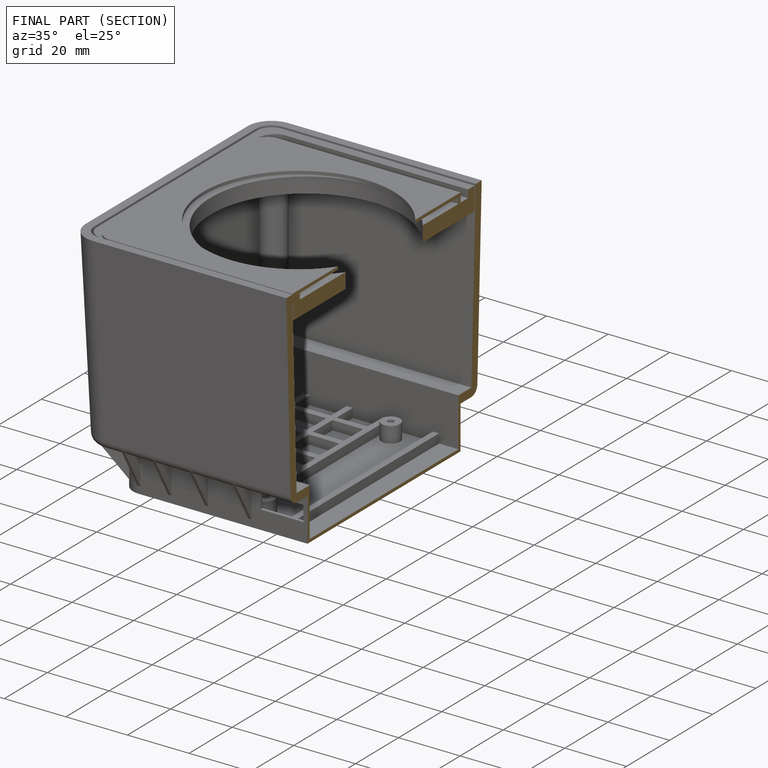
[diagram: finished part — half-section view (interior)]
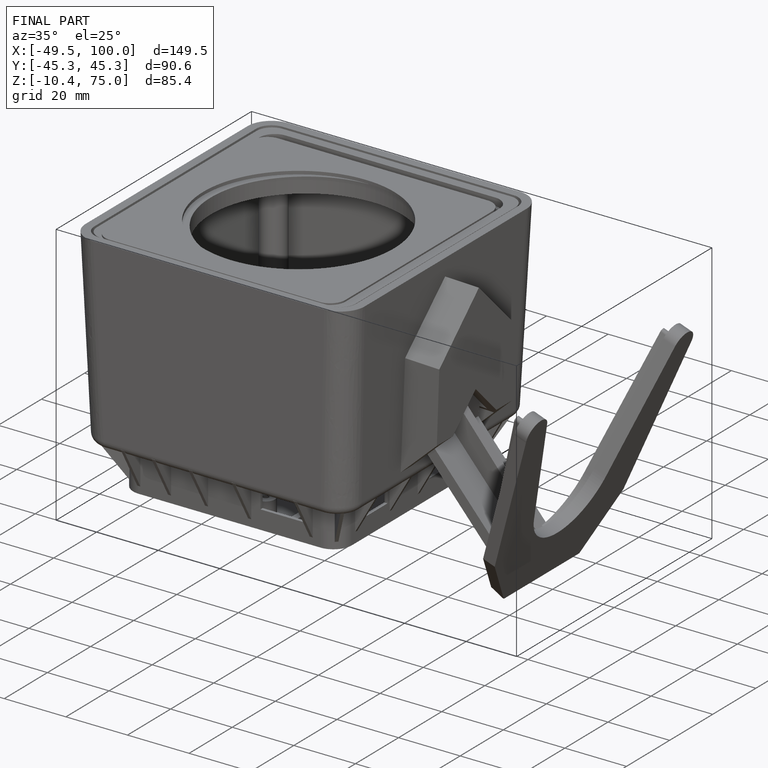
[diagram: finished part — iso view with bounding-box wireframe]
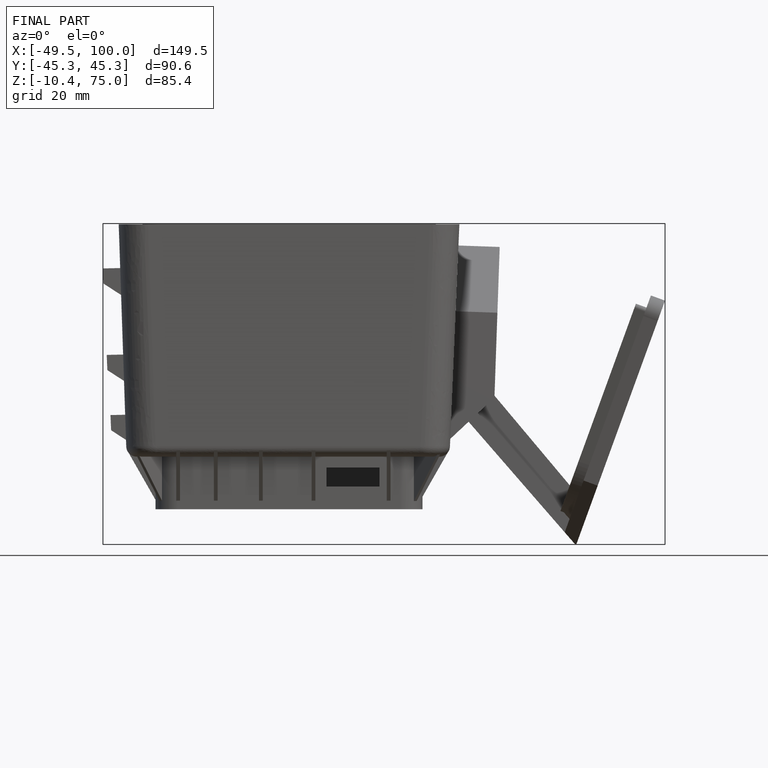
[diagram: finished part — front view with bounding-box wireframe]
